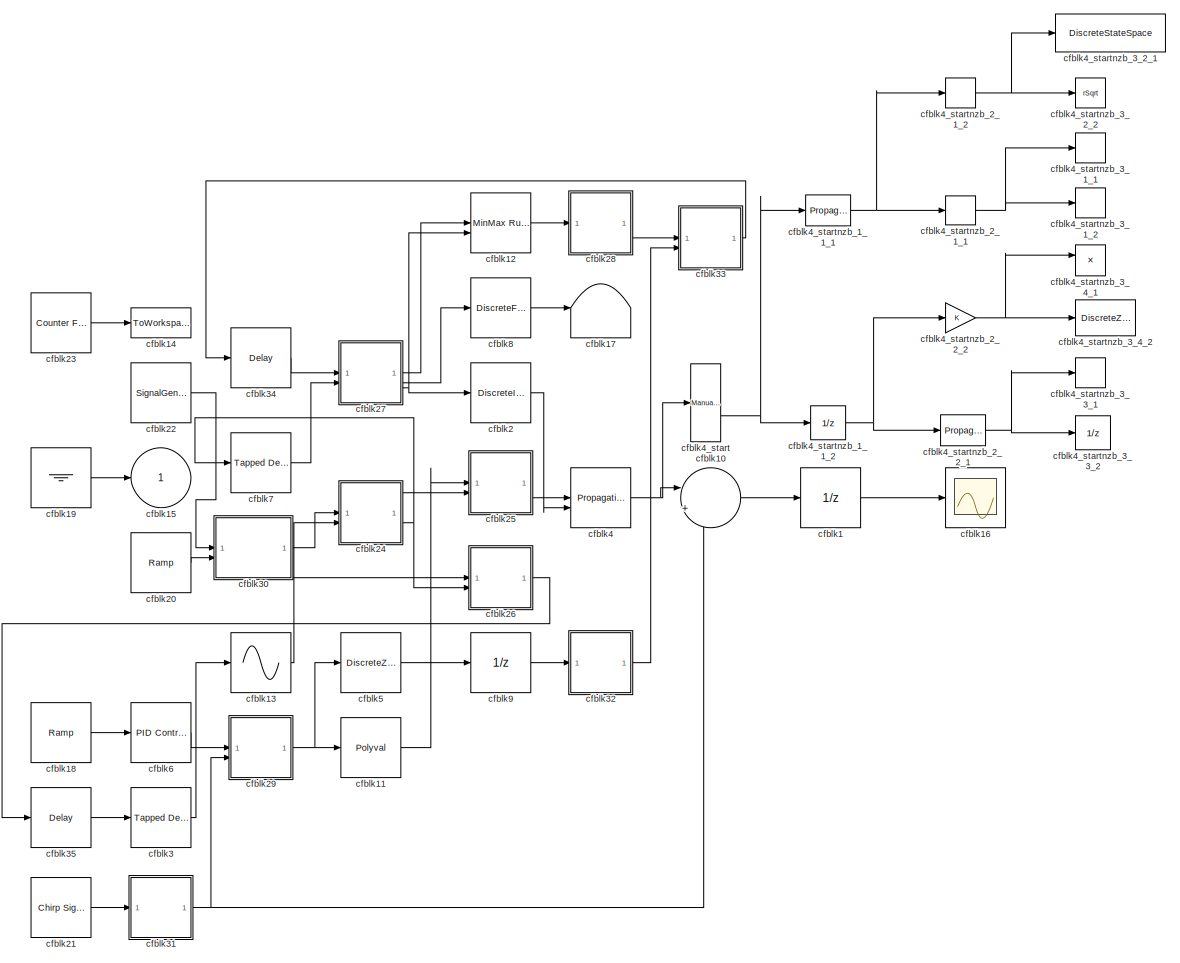
[diagram: root canvas - part 1/1, most of the canvas]
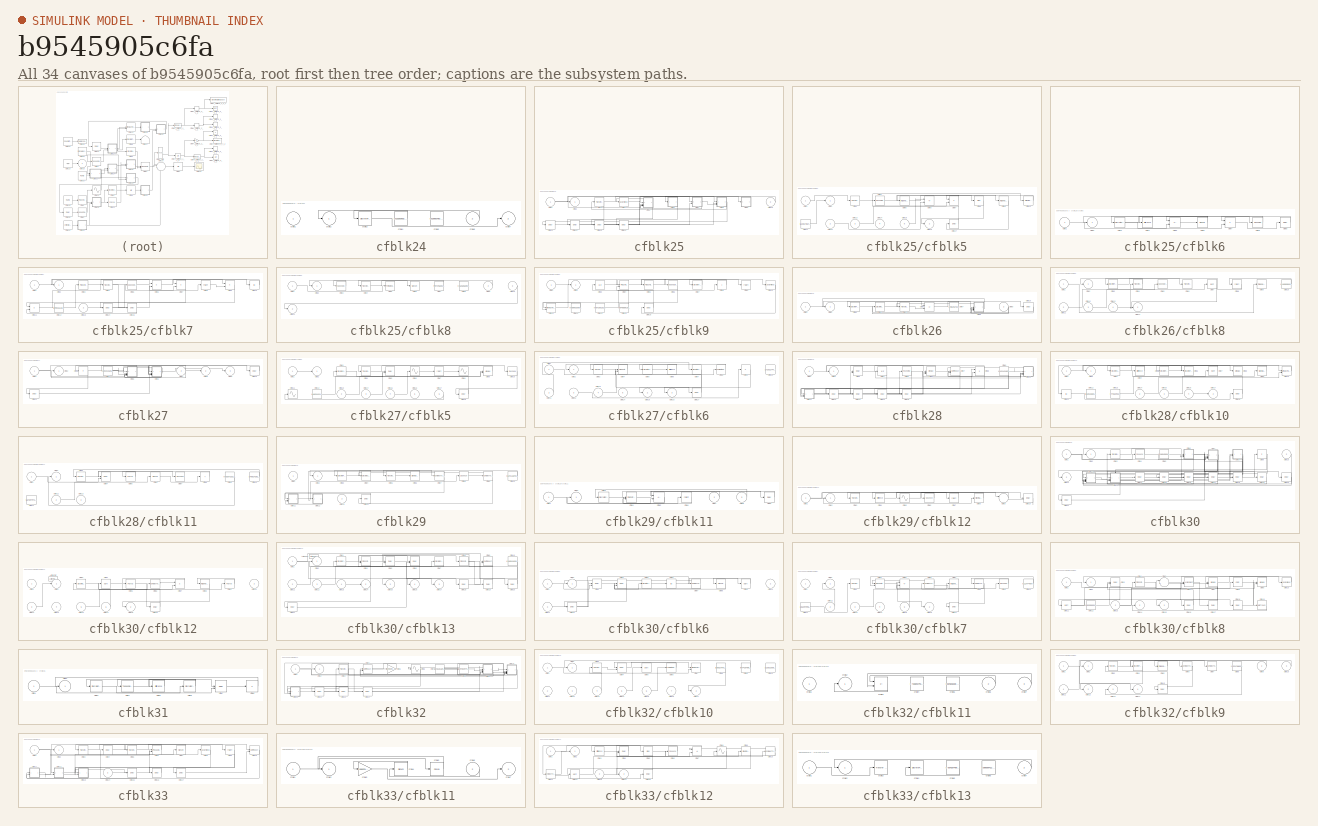
[diagram: thumbnail index - all 34 canvases of the model, root first then tree order]
MODEL slx_b9545905c6fa
KIND model
CONFIG AbsTol = auto
CONFIG EnableMultiTasking = off
CONFIG FixedStep = auto
CONFIG MaxStep = auto
CONFIG MinStep = auto
CONFIG RelTol = 1e-3
CONFIG SampleTimeConstraint = Unconstrained
CONFIG SolverName = VariableStepAuto
CONFIG StartTime = 0.0
CONFIG StopTime = 10.0
BLOCK [UnitDelay] cfblk1
  HasFrameUpgradeWarning = on
BLOCK [Sum] cfblk10
  Inputs = |++
BLOCK [Polyval] cfblk11
  Coefs = [ +2.081618890e-019, -1.441693666e-014, +4.719686976e-010, -8.536869453e-006, +1.621573104e-001, -8.087801117e+001 ]
BLOCK [Reference] cfblk12  REF=simulink/Math
Operations/MinMax
Running
Resettable
  SourceBlock = simulink/Math\nOperations/MinMax\nRunning\nResettable
  SourceType = MinMax Running Resettable
BLOCK [Sin] cfblk13
  SampleTime = 0
  TimeSource = Use external signal
BLOCK [ToWorkspace] cfblk14
  FixptAsFi = on
  MaxDataPoints = inf
  SampleTime = -1
  SaveFormat = Timeseries
  VariableName = jimbhge
BLOCK [Outport] cfblk15
BLOCK [Scope] cfblk16
  Floating = off
  NumInputPorts = 1
  ScopeSpecificationString = Simulink.scopes.TimeScopeBlockCfg
BLOCK [Terminator] cfblk17
BLOCK [Reference] cfblk18  REF=simulink/Sources/Ramp
  SourceBlock = simulink/Sources/Ramp
  SourceType = Ramp
BLOCK [Ground] cfblk19
BLOCK [DiscreteIntegrator] cfblk2
  ICPrevOutput = DiscIntNeverNeededParam
  ICPrevScaledInput = DiscIntNeverNeededParam
  InitialConditionSetting = Auto
BLOCK [Reference] cfblk20  REF=simulink/Sources/Ramp
  SourceBlock = simulink/Sources/Ramp
  SourceType = Ramp
BLOCK [Reference] cfblk21  REF=simulink/Sources/Chirp Signal
  SourceBlock = simulink/Sources/Chirp Signal
  SourceType = chirp
BLOCK [SignalGenerator] cfblk22
  Amplitude = [544340339.779621]
  WaveForm = square
BLOCK [Reference] cfblk23  REF=simulink/Sources/Counter
Free-Running
  SourceBlock = simulink/Sources/Counter\nFree-Running
  SourceType = Counter Free-Running
BLOCK [SubSystem] cfblk24
BLOCK [Inport] cfblk24/cfblk1
BLOCK [Outport] cfblk24/cfblk2
BLOCK [DiscreteFir] cfblk24/cfblk3
  InputPortMap = u0
  OutputPortMap = o0
  SampleTime = 1
BLOCK [Constant] cfblk24/cfblk4
  SampleTime = 1
  Value = [619260692.211267]
BLOCK [Constant] cfblk24/cfblk5
  SampleTime = 1
  Value = [619560780.626358]
BLOCK [Inport] cfblk24/cfblk6
  Port = 2
BLOCK [Outport] cfblk24/cfblk7
  Port = 2
BLOCK [SubSystem] cfblk25
BLOCK [Inport] cfblk25/cfblk1
BLOCK [Inport] cfblk25/cfblk10
  Port = 2
BLOCK [Delay] cfblk25/cfblk11
  InputPortMap = u0
  SampleTime = 1
BLOCK [Delay] cfblk25/cfblk12
  InputPortMap = u0
  SampleTime = 1
BLOCK [Delay] cfblk25/cfblk13
  InputPortMap = u0
  SampleTime = 1
BLOCK [Delay] cfblk25/cfblk14
  InputPortMap = u0
  SampleTime = 1
BLOCK [Outport] cfblk25/cfblk2
BLOCK [Reference] cfblk25/cfblk3  REF=simulink/Discrete/Transfer Fcn
Real Zero
  SourceBlock = simulink/Discrete/Transfer Fcn\nReal Zero
  SourceType = Transfer Fcn Real Zero
BLOCK [UnaryMinus] cfblk25/cfblk4
BLOCK [SubSystem] cfblk25/cfblk5
BLOCK [Inport] cfblk25/cfblk5/cfblk1
BLOCK [Reference] cfblk25/cfblk5/cfblk10  REF=simulink/Math
Operations/Slider
Gain
  SourceBlock = simulink/Math\nOperations/Slider\nGain
  SourceType = Slider Gain
BLOCK [Constant] cfblk25/cfblk5/cfblk11
  SampleTime = 1
  Value = [522817857.445277]
BLOCK [Inport] cfblk25/cfblk5/cfblk12
  Port = 2
BLOCK [Inport] cfblk25/cfblk5/cfblk13
  Port = 3
BLOCK [Inport] cfblk25/cfblk5/cfblk14
  Port = 4
BLOCK [Inport] cfblk25/cfblk5/cfblk15
  Port = 5
BLOCK [Outport] cfblk25/cfblk5/cfblk16
  Port = 2
BLOCK [Delay] cfblk25/cfblk5/cfblk17
  InputPortMap = u0
  SampleTime = 1
BLOCK [Outport] cfblk25/cfblk5/cfblk2
BLOCK [Reference] cfblk25/cfblk5/cfblk3  REF=simulink/Discrete/Transfer Fcn
Real Zero
  SourceBlock = simulink/Discrete/Transfer Fcn\nReal Zero
  SourceType = Transfer Fcn Real Zero
BLOCK [Rounding] cfblk25/cfblk5/cfblk4
BLOCK [Trigonometry] cfblk25/cfblk5/cfblk5
BLOCK [Sum] cfblk25/cfblk5/cfblk6
  IconShape = rectangular
  Inputs = +-
BLOCK [Product] cfblk25/cfblk5/cfblk7
BLOCK [Bias] cfblk25/cfblk5/cfblk8
  Bias = [674569887.854416]
  SaturateOnIntegerOverflow = off
BLOCK [Trigonometry] cfblk25/cfblk5/cfblk9
BLOCK [SubSystem] cfblk25/cfblk6
BLOCK [Inport] cfblk25/cfblk6/cfblk1
BLOCK [Outport] cfblk25/cfblk6/cfblk2
BLOCK [DiscreteFir] cfblk25/cfblk6/cfblk3
  InputPortMap = u0
  OutputPortMap = o0
  SampleTime = 1
BLOCK [Reference] cfblk25/cfblk6/cfblk4  REF=simulink/Discrete/Difference
  SourceBlock = simulink/Discrete/Difference
  SourceType = Difference
BLOCK [Sum] cfblk25/cfblk6/cfblk5
  IconShape = rectangular
  Inputs = +-
BLOCK [Signum] cfblk25/cfblk6/cfblk6
BLOCK [Product] cfblk25/cfblk6/cfblk7
BLOCK [Rounding] cfblk25/cfblk6/cfblk8
BLOCK [Delay] cfblk25/cfblk6/cfblk9
  InputPortMap = u0
  SampleTime = 1
BLOCK [SubSystem] cfblk25/cfblk7
BLOCK [Inport] cfblk25/cfblk7/cfblk1
BLOCK [Abs] cfblk25/cfblk7/cfblk10
  SaturateOnIntegerOverflow = off
BLOCK [Product] cfblk25/cfblk7/cfblk11
BLOCK [Constant] cfblk25/cfblk7/cfblk12
  SampleTime = 1
  Value = [399015118.877011]
BLOCK [Inport] cfblk25/cfblk7/cfblk13
  Port = 2
BLOCK [Delay] cfblk25/cfblk7/cfblk14
  InputPortMap = u0
  SampleTime = 1
BLOCK [Delay] cfblk25/cfblk7/cfblk15
  InputPortMap = u0
  SampleTime = 1
BLOCK [Outport] cfblk25/cfblk7/cfblk2
BLOCK [Reference] cfblk25/cfblk7/cfblk3  REF=slpidlib/PID Controller
  LibrarySourceBlock = simulink/Discrete/Discrete PID Controller
  SourceBlock = slpidlib/PID Controller
  SourceType = PID 1dof
BLOCK [Reference] cfblk25/cfblk7/cfblk4  REF=simulink/Discrete/Transfer Fcn
Lead or Lag
  SourceBlock = simulink/Discrete/Transfer Fcn\nLead or Lag
  SourceType = Lead or Lag Compensator
BLOCK [Reference] cfblk25/cfblk7/cfblk5  REF=simulink/Discrete/Tapped Delay
  SourceBlock = simulink/Discrete/Tapped Delay
  SourceType = Tapped Delay Line
BLOCK [Product] cfblk25/cfblk7/cfblk6
BLOCK [Product] cfblk25/cfblk7/cfblk7
  Inputs = **
BLOCK [Sqrt] cfblk25/cfblk7/cfblk8
  AlgorithmType = Newton-Raphson
  Operator = rSqrt
BLOCK [Product] cfblk25/cfblk7/cfblk9
  Inputs = **
BLOCK [SubSystem] cfblk25/cfblk8
BLOCK [Inport] cfblk25/cfblk8/cfblk1
BLOCK [Inport] cfblk25/cfblk8/cfblk10
  Port = 3
BLOCK [Outport] cfblk25/cfblk8/cfblk11
  Port = 2
BLOCK [Outport] cfblk25/cfblk8/cfblk2
BLOCK [Reference] cfblk25/cfblk8/cfblk3  REF=simulink/Discrete/Tapped Delay
  SourceBlock = simulink/Discrete/Tapped Delay
  SourceType = Tapped Delay Line
BLOCK [Reference] cfblk25/cfblk8/cfblk4  REF=simulink/Discrete/Transfer Fcn
Lead or Lag
  SourceBlock = simulink/Discrete/Transfer Fcn\nLead or Lag
  SourceType = Lead or Lag Compensator
BLOCK [PermuteDimensions] cfblk25/cfblk8/cfblk5
BLOCK [Signum] cfblk25/cfblk8/cfblk6
BLOCK [Constant] cfblk25/cfblk8/cfblk7
  SampleTime = 1
  Value = [497245692.108561]
BLOCK [Constant] cfblk25/cfblk8/cfblk8
  SampleTime = 1
  Value = [-352505690.659076]
BLOCK [Inport] cfblk25/cfblk8/cfblk9
  Port = 2
BLOCK [SubSystem] cfblk25/cfblk9
BLOCK [Inport] cfblk25/cfblk9/cfblk1
BLOCK [UnaryMinus] cfblk25/cfblk9/cfblk10
BLOCK [Reference] cfblk25/cfblk9/cfblk11  REF=simulink/Math
Operations/MinMax
Running
Resettable
  SourceBlock = simulink/Math\nOperations/MinMax\nRunning\nResettable
  SourceType = MinMax Running Resettable
BLOCK [Constant] cfblk25/cfblk9/cfblk12
  SampleTime = 1
  Value = [-589662599.305054]
BLOCK [Constant] cfblk25/cfblk9/cfblk13
  SampleTime = 1
  Value = [-897290192.026509]
BLOCK [Constant] cfblk25/cfblk9/cfblk14
  SampleTime = 1
  Value = [-404888619.665667]
BLOCK [Delay] cfblk25/cfblk9/cfblk15
  InputPortMap = u0
  SampleTime = 1
BLOCK [Outport] cfblk25/cfblk9/cfblk2
BLOCK [UnitDelay] cfblk25/cfblk9/cfblk3
  HasFrameUpgradeWarning = on
BLOCK [Reference] cfblk25/cfblk9/cfblk4  REF=slpidlib/PID Controller (2DOF)
  LibrarySourceBlock = simulink/Discrete/Discrete PID Controller (2DOF)
  SourceBlock = slpidlib/PID Controller (2DOF)
  SourceType = PID 2dof
BLOCK [Reference] cfblk25/cfblk9/cfblk5  REF=slpidlib/PID Controller
  LibrarySourceBlock = simulink/Discrete/Discrete PID Controller
  SourceBlock = slpidlib/PID Controller
  SourceType = PID 1dof
BLOCK [Reference] cfblk25/cfblk9/cfblk6  REF=simulink/Discrete/Tapped Delay
  SourceBlock = simulink/Discrete/Tapped Delay
  SourceType = Tapped Delay Line
BLOCK [DiscreteTransferFcn] cfblk25/cfblk9/cfblk7
  InputPortMap = u0
  SampleTime = 1
BLOCK [Sum] cfblk25/cfblk9/cfblk8
  IconShape = rectangular
  Inputs = +
BLOCK [Sqrt] cfblk25/cfblk9/cfblk9
  AlgorithmType = Newton-Raphson
  Operator = rSqrt
BLOCK [SubSystem] cfblk26
BLOCK [Inport] cfblk26/cfblk1
BLOCK [Delay] cfblk26/cfblk10
  InputPortMap = u0
  SampleTime = 1
BLOCK [Outport] cfblk26/cfblk2
BLOCK [DiscreteFilter] cfblk26/cfblk3
  InputPortMap = u0
  SampleTime = 1
BLOCK [DiscreteIntegrator] cfblk26/cfblk4
  ICPrevOutput = DiscIntNeverNeededParam
  ICPrevScaledInput = DiscIntNeverNeededParam
  InitialConditionSetting = Auto
BLOCK [Reference] cfblk26/cfblk5  REF=simulink/Discrete/Transfer Fcn
Real Zero
  SourceBlock = simulink/Discrete/Transfer Fcn\nReal Zero
  SourceType = Transfer Fcn Real Zero
BLOCK [Sum] cfblk26/cfblk6
  IconShape = rectangular
  Inputs = +-
BLOCK [Constant] cfblk26/cfblk7
  SampleTime = 1
  Value = [-48546722.892624]
BLOCK [SubSystem] cfblk26/cfblk8
BLOCK [Inport] cfblk26/cfblk8/cfblk1
BLOCK [Constant] cfblk26/cfblk8/cfblk10
  SampleTime = 1
  Value = [-146083815.756705]
BLOCK [Inport] cfblk26/cfblk8/cfblk11
  Port = 2
BLOCK [Inport] cfblk26/cfblk8/cfblk12
  Port = 3
BLOCK [Inport] cfblk26/cfblk8/cfblk13
  Port = 4
BLOCK [Outport] cfblk26/cfblk8/cfblk14
  Port = 2
BLOCK [Outport] cfblk26/cfblk8/cfblk2
BLOCK [DiscreteFir] cfblk26/cfblk8/cfblk3
  InputPortMap = u0
  OutputPortMap = o0
  SampleTime = 1
BLOCK [Reference] cfblk26/cfblk8/cfblk4  REF=simulink/Discrete/Transfer Fcn
First Order
  SourceBlock = simulink/Discrete/Transfer Fcn\nFirst Order
  SourceType = First Order Transfer Fcn
BLOCK [Reference] cfblk26/cfblk8/cfblk5  REF=simulink/Discrete/Tapped Delay
  SourceBlock = simulink/Discrete/Tapped Delay
  SourceType = Tapped Delay Line
BLOCK [Reference] cfblk26/cfblk8/cfblk6  REF=simulink/Discrete/Transfer Fcn
First Order
  SourceBlock = simulink/Discrete/Transfer Fcn\nFirst Order
  SourceType = First Order Transfer Fcn
BLOCK [Sqrt] cfblk26/cfblk8/cfblk7
BLOCK [Sqrt] cfblk26/cfblk8/cfblk8
  AlgorithmType = Newton-Raphson
  Operator = rSqrt
BLOCK [Trigonometry] cfblk26/cfblk8/cfblk9
BLOCK [Inport] cfblk26/cfblk9
  Port = 2
BLOCK [SubSystem] cfblk27
BLOCK [Inport] cfblk27/cfblk1
BLOCK [Delay] cfblk27/cfblk10
  InputPortMap = u0
  SampleTime = 1
BLOCK [Delay] cfblk27/cfblk11
  InputPortMap = u0
  SampleTime = 1
BLOCK [Outport] cfblk27/cfblk2
BLOCK [Product] cfblk27/cfblk3
  Inputs = *
BLOCK [Constant] cfblk27/cfblk4
  SampleTime = 1
  Value = [-592211525.681612]
BLOCK [SubSystem] cfblk27/cfblk5
BLOCK [Inport] cfblk27/cfblk5/cfblk1
BLOCK [Reshape] cfblk27/cfblk5/cfblk10
BLOCK [Sin] cfblk27/cfblk5/cfblk11
  SampleTime = 0
  TimeSource = Use external signal
BLOCK [Constant] cfblk27/cfblk5/cfblk12
  SampleTime = 1
  Value = [-84034424.165406]
BLOCK [Inport] cfblk27/cfblk5/cfblk13
  Port = 2
BLOCK [Inport] cfblk27/cfblk5/cfblk14
  Port = 3
BLOCK [Inport] cfblk27/cfblk5/cfblk15
  Port = 4
BLOCK [Inport] cfblk27/cfblk5/cfblk16
  Port = 5
BLOCK [Inport] cfblk27/cfblk5/cfblk17
  Port = 6
BLOCK [Delay] cfblk27/cfblk5/cfblk18
  InputPortMap = u0
  SampleTime = 1
BLOCK [Outport] cfblk27/cfblk5/cfblk2
BLOCK [DiscreteStateSpace] cfblk27/cfblk5/cfblk3
BLOCK [Reference] cfblk27/cfblk5/cfblk4  REF=simulink/Discrete/Transfer Fcn
Real Zero
  SourceBlock = simulink/Discrete/Transfer Fcn\nReal Zero
  SourceType = Transfer Fcn Real Zero
BLOCK [Delay] cfblk27/cfblk5/cfblk5
  InputPortMap = u0,e6
  SampleTime = 1
  ShowEnablePort = on
BLOCK [Sin] cfblk27/cfblk5/cfblk6
  SampleTime = 0
  TimeSource = Use external signal
BLOCK [Sqrt] cfblk27/cfblk5/cfblk7
  AlgorithmType = Newton-Raphson
  Operator = rSqrt
BLOCK [Sin] cfblk27/cfblk5/cfblk8
  SampleTime = 0
  TimeSource = Use external signal
BLOCK [MinMax] cfblk27/cfblk5/cfblk9
  Inputs = 2
BLOCK [SubSystem] cfblk27/cfblk6
BLOCK [Inport] cfblk27/cfblk6/cfblk1
BLOCK [Constant] cfblk27/cfblk6/cfblk10
  SampleTime = 1
  Value = [171631747.225343]
BLOCK [Inport] cfblk27/cfblk6/cfblk11
  Port = 2
BLOCK [Inport] cfblk27/cfblk6/cfblk12
  Port = 3
BLOCK [Inport] cfblk27/cfblk6/cfblk13
  Port = 4
BLOCK [Inport] cfblk27/cfblk6/cfblk14
  Port = 5
BLOCK [Outport] cfblk27/cfblk6/cfblk15
  Port = 2
BLOCK [Outport] cfblk27/cfblk6/cfblk16
  Port = 3
BLOCK [Delay] cfblk27/cfblk6/cfblk17
  InputPortMap = u0
  SampleTime = 1
BLOCK [Outport] cfblk27/cfblk6/cfblk2
BLOCK [Reference] cfblk27/cfblk6/cfblk3  REF=simulink/Discrete/Transfer Fcn
First Order
  SourceBlock = simulink/Discrete/Transfer Fcn\nFirst Order
  SourceType = First Order Transfer Fcn
BLOCK [Reference] cfblk27/cfblk6/cfblk4  REF=slpidlib/PID Controller (2DOF)
  LibrarySourceBlock = simulink/Discrete/Discrete PID Controller (2DOF)
  SourceBlock = slpidlib/PID Controller (2DOF)
  SourceType = PID 2dof
BLOCK [DiscreteZeroPole] cfblk27/cfblk6/cfblk5
  Gain = 1
  Poles = [0 0.5]
BLOCK [Reference] cfblk27/cfblk6/cfblk6  REF=simulink/Discrete/Difference
  SourceBlock = simulink/Discrete/Difference
  SourceType = Difference
BLOCK [DiscreteFir] cfblk27/cfblk6/cfblk7
  InputPortMap = u0
  OutputPortMap = o0
  SampleTime = 1
BLOCK [PermuteDimensions] cfblk27/cfblk6/cfblk8
BLOCK [Product] cfblk27/cfblk6/cfblk9
  Inputs = *
BLOCK [Inport] cfblk27/cfblk7
  Port = 2
BLOCK [Outport] cfblk27/cfblk8
  Port = 2
BLOCK [Outport] cfblk27/cfblk9
  Port = 3
BLOCK [SubSystem] cfblk28
BLOCK [Inport] cfblk28/cfblk1
BLOCK [SubSystem] cfblk28/cfblk10
BLOCK [Inport] cfblk28/cfblk10/cfblk1
BLOCK [Reference] cfblk28/cfblk10/cfblk10  REF=simulink/Math
Operations/MinMax
Running
Resettable
  SourceBlock = simulink/Math\nOperations/MinMax\nRunning\nResettable
  SourceType = MinMax Running Resettable
BLOCK [Abs] cfblk28/cfblk10/cfblk11
  SaturateOnIntegerOverflow = off
BLOCK [Constant] cfblk28/cfblk10/cfblk12
  SampleTime = 1
  Value = [262615581.449142]
BLOCK [Constant] cfblk28/cfblk10/cfblk13
  SampleTime = 1
  Value = [-47653932.616720]
BLOCK [Inport] cfblk28/cfblk10/cfblk14
  Port = 2
BLOCK [Inport] cfblk28/cfblk10/cfblk15
  Port = 3
BLOCK [Inport] cfblk28/cfblk10/cfblk16
  Port = 4
BLOCK [Outport] cfblk28/cfblk10/cfblk17
  Port = 2
BLOCK [Delay] cfblk28/cfblk10/cfblk18
  InputPortMap = u0
  SampleTime = 1
BLOCK [Outport] cfblk28/cfblk10/cfblk2
BLOCK [DiscreteStateSpace] cfblk28/cfblk10/cfblk3
BLOCK [Reference] cfblk28/cfblk10/cfblk4  REF=simulink/Discrete/Difference
  SourceBlock = simulink/Discrete/Difference
  SourceType = Difference
BLOCK [DiscreteFir] cfblk28/cfblk10/cfblk5
  InputPortMap = u0
  OutputPortMap = o0
  SampleTime = 1
BLOCK [DiscreteFir] cfblk28/cfblk10/cfblk6
  InputPortMap = u0
  OutputPortMap = o0
  SampleTime = 1
BLOCK [Sqrt] cfblk28/cfblk10/cfblk7
BLOCK [MinMax] cfblk28/cfblk10/cfblk8
  Function = max
BLOCK [Reference] cfblk28/cfblk10/cfblk9  REF=simulink/Math
Operations/Slider
Gain
  SourceBlock = simulink/Math\nOperations/Slider\nGain
  SourceType = Slider Gain
BLOCK [SubSystem] cfblk28/cfblk11
BLOCK [Inport] cfblk28/cfblk11/cfblk1
BLOCK [Constant] cfblk28/cfblk11/cfblk10
  SampleTime = 1
  Value = [146814281.342832]
BLOCK [Constant] cfblk28/cfblk11/cfblk11
  SampleTime = 1
  Value = [557597971.327847]
BLOCK [Inport] cfblk28/cfblk11/cfblk12
  Port = 2
BLOCK [Inport] cfblk28/cfblk11/cfblk13
  Port = 3
BLOCK [Outport] cfblk28/cfblk11/cfblk2
BLOCK [Reference] cfblk28/cfblk11/cfblk3  REF=simulink/Discrete/Transfer Fcn
Real Zero
  SourceBlock = simulink/Discrete/Transfer Fcn\nReal Zero
  SourceType = Transfer Fcn Real Zero
BLOCK [Delay] cfblk28/cfblk11/cfblk4
  DelayLengthSource = Input port
  InputPortMap = u0,p1
  SampleTime = 1
BLOCK [Polyval] cfblk28/cfblk11/cfblk5
  Coefs = [ +2.081618890e-019, -1.441693666e-014, +4.719686976e-010, -8.536869453e-006, +1.621573104e-001, -8.087801117e+001 ]
BLOCK [Signum] cfblk28/cfblk11/cfblk6
BLOCK [Reshape] cfblk28/cfblk11/cfblk7
BLOCK [Sum] cfblk28/cfblk11/cfblk8
  IconShape = rectangular
  Inputs = +
BLOCK [Constant] cfblk28/cfblk11/cfblk9
  SampleTime = 1
  Value = [-502071521.517534]
BLOCK [Delay] cfblk28/cfblk12
  InputPortMap = u0
  SampleTime = 1
BLOCK [Delay] cfblk28/cfblk13
  InputPortMap = u0
  SampleTime = 1
BLOCK [Delay] cfblk28/cfblk14
  InputPortMap = u0
  SampleTime = 1
BLOCK [Delay] cfblk28/cfblk15
  InputPortMap = u0
  SampleTime = 1
BLOCK [Outport] cfblk28/cfblk2
BLOCK [Delay] cfblk28/cfblk3
  DelayLengthSource = Input port
  InputPortMap = u0,p1
  SampleTime = 1
BLOCK [UnitDelay] cfblk28/cfblk4
  HasFrameUpgradeWarning = on
BLOCK [Rounding] cfblk28/cfblk5
BLOCK [MinMax] cfblk28/cfblk6
  Inputs = 3
BLOCK [DotProduct] cfblk28/cfblk7
  OutDataTypeStr = Inherit: Inherit via internal rule
BLOCK [Product] cfblk28/cfblk8
  Inputs = **
BLOCK [Constant] cfblk28/cfblk9
  SampleTime = 1
  Value = [-543142463.220039]
BLOCK [SubSystem] cfblk29
BLOCK [Inport] cfblk29/cfblk1
BLOCK [Constant] cfblk29/cfblk10
  SampleTime = 1
  Value = [-634116043.235819]
BLOCK [SubSystem] cfblk29/cfblk11
BLOCK [Inport] cfblk29/cfblk11/cfblk1
BLOCK [Outport] cfblk29/cfblk11/cfblk2
BLOCK [DiscreteFilter] cfblk29/cfblk11/cfblk3
  InputPortMap = u0
  SampleTime = 1
BLOCK [Reference] cfblk29/cfblk11/cfblk4  REF=slpidlib/PID Controller (2DOF)
  LibrarySourceBlock = simulink/Discrete/Discrete PID Controller (2DOF)
  SourceBlock = slpidlib/PID Controller (2DOF)
  SourceType = PID 2dof
BLOCK [Sum] cfblk29/cfblk11/cfblk5
  IconShape = rectangular
  Inputs = +-
BLOCK [Sqrt] cfblk29/cfblk11/cfblk6
  AlgorithmType = Newton-Raphson
  Operator = rSqrt
BLOCK [Inport] cfblk29/cfblk11/cfblk7
  Port = 2
BLOCK [Inport] cfblk29/cfblk11/cfblk8
  Port = 3
BLOCK [Delay] cfblk29/cfblk11/cfblk9
  InputPortMap = u0
  SampleTime = 1
BLOCK [SubSystem] cfblk29/cfblk12
BLOCK [Inport] cfblk29/cfblk12/cfblk1
BLOCK [Delay] cfblk29/cfblk12/cfblk10
  InputPortMap = u0
  SampleTime = 1
BLOCK [Outport] cfblk29/cfblk12/cfblk2
BLOCK [Reference] cfblk29/cfblk12/cfblk3  REF=simulink/Discrete/Transfer Fcn
First Order
  SourceBlock = simulink/Discrete/Transfer Fcn\nFirst Order
  SourceType = First Order Transfer Fcn
BLOCK [Reference] cfblk29/cfblk12/cfblk4  REF=simulink/Discrete/Difference
  SourceBlock = simulink/Discrete/Difference
  SourceType = Difference
BLOCK [Sin] cfblk29/cfblk12/cfblk5
  SampleTime = 0
  TimeSource = Use external signal
BLOCK [Squeeze] cfblk29/cfblk12/cfblk6
BLOCK [Sqrt] cfblk29/cfblk12/cfblk7
  AlgorithmType = Newton-Raphson
  Operator = rSqrt
BLOCK [Reference] cfblk29/cfblk12/cfblk8  REF=simulink/Math
Operations/Slider
Gain
  SourceBlock = simulink/Math\nOperations/Slider\nGain
  SourceType = Slider Gain
BLOCK [Sum] cfblk29/cfblk12/cfblk9
  Inputs = |++
BLOCK [Inport] cfblk29/cfblk13
  Port = 2
BLOCK [Delay] cfblk29/cfblk14
  InputPortMap = u0
  SampleTime = 1
BLOCK [Outport] cfblk29/cfblk2
BLOCK [DiscreteFir] cfblk29/cfblk3
  InputPortMap = u0
  OutputPortMap = o0
  SampleTime = 1
BLOCK [DiscreteStateSpace] cfblk29/cfblk4
BLOCK [Reference] cfblk29/cfblk5  REF=simulink/Discrete/Transfer Fcn
Lead or Lag
  SourceBlock = simulink/Discrete/Transfer Fcn\nLead or Lag
  SourceType = Lead or Lag Compensator
BLOCK [Reference] cfblk29/cfblk6  REF=simulink/Math
Operations/Slider
Gain
  SourceBlock = simulink/Math\nOperations/Slider\nGain
  SourceType = Slider Gain
BLOCK [ComplexToRealImag] cfblk29/cfblk7
BLOCK [Squeeze] cfblk29/cfblk8
BLOCK [ComplexToMagnitudeAngle] cfblk29/cfblk9
BLOCK [Reference] cfblk3  REF=simulink/Discrete/Tapped Delay
  SourceBlock = simulink/Discrete/Tapped Delay
  SourceType = Tapped Delay Line
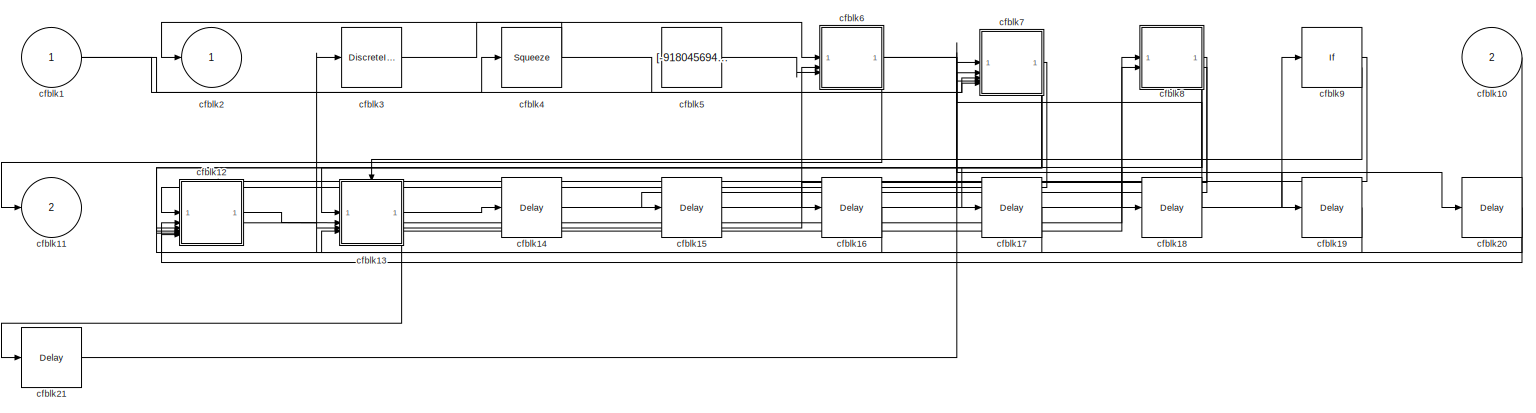
[diagram: cfblk30 - part 1/1, most of the canvas]
BLOCK [SubSystem] cfblk30
BLOCK [Inport] cfblk30/cfblk1
BLOCK [Inport] cfblk30/cfblk10
  Port = 2
BLOCK [Outport] cfblk30/cfblk11
  Port = 2
BLOCK [SubSystem] cfblk30/cfblk12
  TreatAsAtomicUnit = on
BLOCK [ActionPort] cfblk30/cfblk12/Action Port
  ActionPortLabel = if(u1 >= 0)
BLOCK [Inport] cfblk30/cfblk12/cfblk1
BLOCK [Inport] cfblk30/cfblk12/cfblk10
  Port = 2
BLOCK [Inport] cfblk30/cfblk12/cfblk11
  Port = 3
BLOCK [Inport] cfblk30/cfblk12/cfblk12
  Port = 4
BLOCK [Inport] cfblk30/cfblk12/cfblk13
  Port = 5
BLOCK [Inport] cfblk30/cfblk12/cfblk14
  Port = 6
BLOCK [Outport] cfblk30/cfblk12/cfblk15
  Port = 2
BLOCK [Delay] cfblk30/cfblk12/cfblk16
  InputPortMap = u0
BLOCK [Outport] cfblk30/cfblk12/cfblk2
BLOCK [DiscreteIntegrator] cfblk30/cfblk12/cfblk3
  ICPrevOutput = DiscIntNeverNeededParam
  ICPrevScaledInput = DiscIntNeverNeededParam
  InitialConditionSetting = Auto
  SampleTime = -1
BLOCK [Sqrt] cfblk30/cfblk12/cfblk4
BLOCK [Polyval] cfblk30/cfblk12/cfblk5
  Coefs = [ +2.081618890e-019, -1.441693666e-014, +4.719686976e-010, -8.536869453e-006, +1.621573104e-001, -8.087801117e+001 ]
BLOCK [ComplexToRealImag] cfblk30/cfblk12/cfblk6
BLOCK [Product] cfblk30/cfblk12/cfblk7
  Inputs = **
BLOCK [Trigonometry] cfblk30/cfblk12/cfblk8
BLOCK [Polyval] cfblk30/cfblk12/cfblk9
  Coefs = [ +2.081618890e-019, -1.441693666e-014, +4.719686976e-010, -8.536869453e-006, +1.621573104e-001, -8.087801117e+001 ]
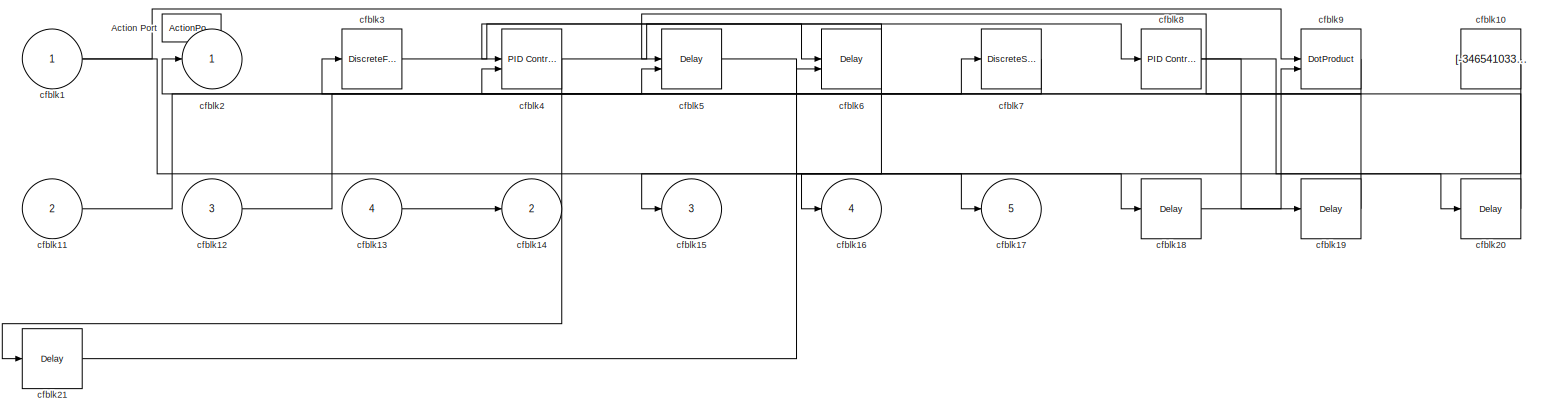
[diagram: cfblk30/cfblk13 - part 1/1, most of the canvas]
BLOCK [SubSystem] cfblk30/cfblk13
  TreatAsAtomicUnit = on
BLOCK [ActionPort] cfblk30/cfblk13/Action Port
  ActionPortLabel = else
BLOCK [Inport] cfblk30/cfblk13/cfblk1
BLOCK [Constant] cfblk30/cfblk13/cfblk10
  SampleTime = 1
  Value = [-346541033.860224]
BLOCK [Inport] cfblk30/cfblk13/cfblk11
  Port = 2
BLOCK [Inport] cfblk30/cfblk13/cfblk12
  Port = 3
BLOCK [Inport] cfblk30/cfblk13/cfblk13
  Port = 4
BLOCK [Outport] cfblk30/cfblk13/cfblk14
  Port = 2
BLOCK [Outport] cfblk30/cfblk13/cfblk15
  Port = 3
BLOCK [Outport] cfblk30/cfblk13/cfblk16
  Port = 4
BLOCK [Outport] cfblk30/cfblk13/cfblk17
  Port = 5
BLOCK [Delay] cfblk30/cfblk13/cfblk18
  InputPortMap = u0
BLOCK [Delay] cfblk30/cfblk13/cfblk19
  InputPortMap = u0
BLOCK [Outport] cfblk30/cfblk13/cfblk2
BLOCK [Delay] cfblk30/cfblk13/cfblk20
  InputPortMap = u0
BLOCK [Delay] cfblk30/cfblk13/cfblk21
  InputPortMap = u0
BLOCK [DiscreteFilter] cfblk30/cfblk13/cfblk3
  InputPortMap = u0
BLOCK [Reference] cfblk30/cfblk13/cfblk4  REF=slpidlib/PID Controller (2DOF)
  LibrarySourceBlock = simulink/Discrete/Discrete PID Controller (2DOF)
  SourceBlock = slpidlib/PID Controller (2DOF)
  SourceType = PID 2dof
BLOCK [Delay] cfblk30/cfblk13/cfblk5
  DelayLengthSource = Input port
  InputPortMap = u0,p1
BLOCK [Delay] cfblk30/cfblk13/cfblk6
  DelayLengthSource = Input port
  InputPortMap = u0,p1
BLOCK [DiscreteStateSpace] cfblk30/cfblk13/cfblk7
  SampleTime = -1
BLOCK [Reference] cfblk30/cfblk13/cfblk8  REF=slpidlib/PID Controller
  LibrarySourceBlock = simulink/Discrete/Discrete PID Controller
  SourceBlock = slpidlib/PID Controller
  SourceType = PID 1dof
BLOCK [DotProduct] cfblk30/cfblk13/cfblk9
  OutDataTypeStr = Inherit: Inherit via internal rule
BLOCK [Delay] cfblk30/cfblk14
  InputPortMap = u0
  SampleTime = 1
BLOCK [Delay] cfblk30/cfblk15
  InputPortMap = u0
  SampleTime = 1
BLOCK [Delay] cfblk30/cfblk16
  InputPortMap = u0
  SampleTime = 1
BLOCK [Delay] cfblk30/cfblk17
  InputPortMap = u0
  SampleTime = 1
BLOCK [Delay] cfblk30/cfblk18
  InputPortMap = u0
  SampleTime = 1
BLOCK [Delay] cfblk30/cfblk19
  InputPortMap = u0
  SampleTime = 1
BLOCK [Outport] cfblk30/cfblk2
BLOCK [Delay] cfblk30/cfblk20
  InputPortMap = u0
  SampleTime = 1
BLOCK [Delay] cfblk30/cfblk21
  InputPortMap = u0
  SampleTime = 1
BLOCK [DiscreteIntegrator] cfblk30/cfblk3
  ICPrevOutput = DiscIntNeverNeededParam
  ICPrevScaledInput = DiscIntNeverNeededParam
  InitialConditionSetting = Auto
BLOCK [Squeeze] cfblk30/cfblk4
BLOCK [Constant] cfblk30/cfblk5
  SampleTime = 1
  Value = [-918045694.810452]
BLOCK [SubSystem] cfblk30/cfblk6
BLOCK [Inport] cfblk30/cfblk6/cfblk1
BLOCK [Inport] cfblk30/cfblk6/cfblk10
  Port = 2
BLOCK [Inport] cfblk30/cfblk6/cfblk11
  Port = 3
BLOCK [Delay] cfblk30/cfblk6/cfblk12
  InputPortMap = u0
  SampleTime = 1
BLOCK [Outport] cfblk30/cfblk6/cfblk2
BLOCK [Delay] cfblk30/cfblk6/cfblk3
  DelayLengthSource = Input port
  InputPortMap = u0,p1
  SampleTime = 1
BLOCK [Delay] cfblk30/cfblk6/cfblk4
  InputPortMap = u0,e6
  SampleTime = 1
  ShowEnablePort = on
BLOCK [DiscreteTransferFcn] cfblk30/cfblk6/cfblk5
  InputPortMap = u0
  SampleTime = 1
BLOCK [Abs] cfblk30/cfblk6/cfblk6
  SaturateOnIntegerOverflow = off
BLOCK [ComplexToMagnitudeAngle] cfblk30/cfblk6/cfblk7
BLOCK [Signum] cfblk30/cfblk6/cfblk8
BLOCK [Sqrt] cfblk30/cfblk6/cfblk9
BLOCK [SubSystem] cfblk30/cfblk7
BLOCK [Inport] cfblk30/cfblk7/cfblk1
BLOCK [Constant] cfblk30/cfblk7/cfblk10
  SampleTime = 1
  Value = [-112474567.592749]
BLOCK [Constant] cfblk30/cfblk7/cfblk11
  SampleTime = 1
  Value = [265394996.218254]
BLOCK [Inport] cfblk30/cfblk7/cfblk12
  Port = 2
BLOCK [Inport] cfblk30/cfblk7/cfblk13
  Port = 3
BLOCK [Inport] cfblk30/cfblk7/cfblk14
  Port = 4
BLOCK [Inport] cfblk30/cfblk7/cfblk15
  Port = 5
BLOCK [Outport] cfblk30/cfblk7/cfblk16
  Port = 2
BLOCK [Delay] cfblk30/cfblk7/cfblk17
  InputPortMap = u0
  SampleTime = 1
BLOCK [Outport] cfblk30/cfblk7/cfblk2
BLOCK [Reference] cfblk30/cfblk7/cfblk3  REF=simulink/Discrete/Transfer Fcn
First Order
  SourceBlock = simulink/Discrete/Transfer Fcn\nFirst Order
  SourceType = First Order Transfer Fcn
BLOCK [PropagationDelay] cfblk30/cfblk7/cfblk4
  SampleTime = 1
BLOCK [Sum] cfblk30/cfblk7/cfblk5
  IconShape = rectangular
  Inputs = +-
BLOCK [ComplexToRealImag] cfblk30/cfblk7/cfblk6
BLOCK [Trigonometry] cfblk30/cfblk7/cfblk7
BLOCK [ComplexToRealImag] cfblk30/cfblk7/cfblk8
BLOCK [Reshape] cfblk30/cfblk7/cfblk9
BLOCK [SubSystem] cfblk30/cfblk8
BLOCK [Inport] cfblk30/cfblk8/cfblk1
BLOCK [UnaryMinus] cfblk30/cfblk8/cfblk10
BLOCK [Sqrt] cfblk30/cfblk8/cfblk11
BLOCK [Constant] cfblk30/cfblk8/cfblk12
  SampleTime = 1
  Value = [-903356691.945363]
BLOCK [Inport] cfblk30/cfblk8/cfblk13
  Port = 2
BLOCK [Outport] cfblk30/cfblk8/cfblk14
  Port = 2
BLOCK [Outport] cfblk30/cfblk8/cfblk15
  Port = 3
BLOCK [Delay] cfblk30/cfblk8/cfblk16
  InputPortMap = u0
  SampleTime = 1
BLOCK [Delay] cfblk30/cfblk8/cfblk17
  InputPortMap = u0
  SampleTime = 1
BLOCK [Delay] cfblk30/cfblk8/cfblk18
  InputPortMap = u0
  SampleTime = 1
BLOCK [DataTypeConversion] cfblk30/cfblk8/cfblk19
  RndMeth = Floor
  SaturateOnIntegerOverflow = off
BLOCK [Outport] cfblk30/cfblk8/cfblk2
BLOCK [Delay] cfblk30/cfblk8/cfblk3
  DelayLengthSource = Input port
  InputPortMap = u0,p1
  SampleTime = 1
BLOCK [Reference] cfblk30/cfblk8/cfblk4  REF=slpidlib/PID Controller
  LibrarySourceBlock = simulink/Discrete/Discrete PID Controller
  SourceBlock = slpidlib/PID Controller
  SourceType = PID 1dof
BLOCK [Sum] cfblk30/cfblk8/cfblk5
  Inputs = |++
BLOCK [Assignment] cfblk30/cfblk8/cfblk6
  DiagnosticForDimensions = Warning
  IndexOptions = Index vector (dialog)
  Indices = 1
  OutputSizes = 1
BLOCK [MinMax] cfblk30/cfblk8/cfblk7
  Inputs = 2
BLOCK [Math] cfblk30/cfblk8/cfblk8
  Operator = conj
BLOCK [MinMax] cfblk30/cfblk8/cfblk9
  Function = max
  Inputs = 2
BLOCK [If] cfblk30/cfblk9
  IfExpression = u1 >= 0
  SampleTime = 1
BLOCK [SubSystem] cfblk31
BLOCK [Inport] cfblk31/cfblk1
BLOCK [Outport] cfblk31/cfblk2
BLOCK [DiscreteFilter] cfblk31/cfblk3
  InputPortMap = u0
  SampleTime = 1
BLOCK [Reference] cfblk31/cfblk4  REF=simulink/Discrete/Tapped Delay
  SourceBlock = simulink/Discrete/Tapped Delay
  SourceType = Tapped Delay Line
BLOCK [Reference] cfblk31/cfblk5  REF=simulink/Discrete/Difference
  SourceBlock = simulink/Discrete/Difference
  SourceType = Difference
BLOCK [DiscreteFir] cfblk31/cfblk6
  InputPortMap = u0
  OutputPortMap = o0
  SampleTime = 1
BLOCK [Math] cfblk31/cfblk7
  Operator = pow
BLOCK [Product] cfblk31/cfblk8
  Inputs = *
BLOCK [SubSystem] cfblk32
BLOCK [Inport] cfblk32/cfblk1
BLOCK [SubSystem] cfblk32/cfblk10
BLOCK [Inport] cfblk32/cfblk10/cfblk1
BLOCK [Constant] cfblk32/cfblk10/cfblk10
  SampleTime = 1
  Value = [213021559.510984]
BLOCK [Inport] cfblk32/cfblk10/cfblk11
  Port = 2
BLOCK [Inport] cfblk32/cfblk10/cfblk12
  Port = 3
BLOCK [Inport] cfblk32/cfblk10/cfblk13
  Port = 4
BLOCK [Inport] cfblk32/cfblk10/cfblk14
  Port = 5
BLOCK [Inport] cfblk32/cfblk10/cfblk15
  Port = 6
BLOCK [Inport] cfblk32/cfblk10/cfblk16
  Port = 7
BLOCK [Outport] cfblk32/cfblk10/cfblk17
  Port = 2
BLOCK [Outport] cfblk32/cfblk10/cfblk2
BLOCK [Reference] cfblk32/cfblk10/cfblk3  REF=simulink/Discrete/Transfer Fcn
Lead or Lag
  SourceBlock = simulink/Discrete/Transfer Fcn\nLead or Lag
  SourceType = Lead or Lag Compensator
BLOCK [Delay] cfblk32/cfblk10/cfblk4
  InputPortMap = u0,e6
  SampleTime = 1
  ShowEnablePort = on
BLOCK [Sqrt] cfblk32/cfblk10/cfblk5
BLOCK [PermuteDimensions] cfblk32/cfblk10/cfblk6
BLOCK [Reference] cfblk32/cfblk10/cfblk7  REF=simulink/Math
Operations/MinMax
Running
Resettable
  SourceBlock = simulink/Math\nOperations/MinMax\nRunning\nResettable
  SourceType = MinMax Running Resettable
BLOCK [Constant] cfblk32/cfblk10/cfblk8
  SampleTime = 1
  Value = [339327641.598673]
BLOCK [Constant] cfblk32/cfblk10/cfblk9
  SampleTime = 1
  Value = [797425486.749439]
BLOCK [SubSystem] cfblk32/cfblk11
BLOCK [Inport] cfblk32/cfblk11/cfblk1
BLOCK [Outport] cfblk32/cfblk11/cfblk2
BLOCK [Sum] cfblk32/cfblk11/cfblk3
  IconShape = rectangular
  Inputs = +-
BLOCK [Constant] cfblk32/cfblk11/cfblk4
  SampleTime = 1
  Value = [-418691791.238715]
BLOCK [Constant] cfblk32/cfblk11/cfblk5
  SampleTime = 1
  Value = [254505328.014726]
BLOCK [Inport] cfblk32/cfblk11/cfblk6
  Port = 2
BLOCK [Inport] cfblk32/cfblk11/cfblk7
  Port = 3
BLOCK [Delay] cfblk32/cfblk12
  InputPortMap = u0
  SampleTime = 1
BLOCK [Delay] cfblk32/cfblk13
  InputPortMap = u0
  SampleTime = 1
BLOCK [Delay] cfblk32/cfblk14
  InputPortMap = u0
  SampleTime = 1
BLOCK [Outport] cfblk32/cfblk2
BLOCK [Reference] cfblk32/cfblk3  REF=simulink/Discrete/Transfer Fcn
Lead or Lag
  SourceBlock = simulink/Discrete/Transfer Fcn\nLead or Lag
  SourceType = Lead or Lag Compensator
BLOCK [DotProduct] cfblk32/cfblk4
  OutDataTypeStr = Inherit: Inherit via internal rule
BLOCK [Gain] cfblk32/cfblk5
  Gain = [-290399110.976152]
BLOCK [Sin] cfblk32/cfblk6
  SampleTime = 0
  TimeSource = Use external signal
BLOCK [Constant] cfblk32/cfblk7
  SampleTime = 1
  Value = [164625169.803673]
BLOCK [Constant] cfblk32/cfblk8
  SampleTime = 1
  Value = [629483974.627171]
BLOCK [SubSystem] cfblk32/cfblk9
BLOCK [Inport] cfblk32/cfblk9/cfblk1
BLOCK [Inport] cfblk32/cfblk9/cfblk10
  Port = 3
BLOCK [Inport] cfblk32/cfblk9/cfblk11
  Port = 4
BLOCK [Outport] cfblk32/cfblk9/cfblk12
  Port = 2
BLOCK [Outport] cfblk32/cfblk9/cfblk13
  Port = 3
BLOCK [Outport] cfblk32/cfblk9/cfblk14
  Port = 4
BLOCK [Delay] cfblk32/cfblk9/cfblk15
  InputPortMap = u0
  SampleTime = 1
BLOCK [Outport] cfblk32/cfblk9/cfblk2
BLOCK [Reference] cfblk32/cfblk9/cfblk3  REF=simulink/Discrete/Transfer Fcn
First Order
  SourceBlock = simulink/Discrete/Transfer Fcn\nFirst Order
  SourceType = First Order Transfer Fcn
BLOCK [DiscreteFilter] cfblk32/cfblk9/cfblk4
  InputPortMap = u0
  SampleTime = 1
BLOCK [Trigonometry] cfblk32/cfblk9/cfblk5
BLOCK [ComplexToRealImag] cfblk32/cfblk9/cfblk6
BLOCK [ComplexToRealImag] cfblk32/cfblk9/cfblk7
BLOCK [Constant] cfblk32/cfblk9/cfblk8
  SampleTime = 1
  Value = [-322478863.911415]
BLOCK [Inport] cfblk32/cfblk9/cfblk9
  Port = 2
BLOCK [SubSystem] cfblk33
BLOCK [Inport] cfblk33/cfblk1
BLOCK [DotProduct] cfblk33/cfblk10
  OutDataTypeStr = Inherit: Inherit via internal rule
BLOCK [SubSystem] cfblk33/cfblk11
BLOCK [Inport] cfblk33/cfblk11/cfblk1
BLOCK [Outport] cfblk33/cfblk11/cfblk2
BLOCK [Gain] cfblk33/cfblk11/cfblk3
  Gain = [836221126.636594]
BLOCK [Signum] cfblk33/cfblk11/cfblk4
BLOCK [Polyval] cfblk33/cfblk11/cfblk5
  Coefs = [ +2.081618890e-019, -1.441693666e-014, +4.719686976e-010, -8.536869453e-006, +1.621573104e-001, -8.087801117e+001 ]
BLOCK [Inport] cfblk33/cfblk11/cfblk6
  Port = 2
BLOCK [Outport] cfblk33/cfblk11/cfblk7
  Port = 2
BLOCK [SubSystem] cfblk33/cfblk12
BLOCK [Inport] cfblk33/cfblk12/cfblk1
BLOCK [ComplexToRealImag] cfblk33/cfblk12/cfblk10
BLOCK [ComplexToMagnitudeAngle] cfblk33/cfblk12/cfblk11
BLOCK [Sqrt] cfblk33/cfblk12/cfblk12
BLOCK [Inport] cfblk33/cfblk12/cfblk13
  Port = 2
BLOCK [Outport] cfblk33/cfblk12/cfblk14
  Port = 2
BLOCK [Delay] cfblk33/cfblk12/cfblk15
  InputPortMap = u0
  SampleTime = 1
BLOCK [Outport] cfblk33/cfblk12/cfblk2
BLOCK [Reference] cfblk33/cfblk12/cfblk3  REF=simulink/Discrete/Difference
  SourceBlock = simulink/Discrete/Difference
  SourceType = Difference
BLOCK [Delay] cfblk33/cfblk12/cfblk4
  DelayLengthSource = Input port
  InputPortMap = u0,p1
  SampleTime = 1
BLOCK [Bias] cfblk33/cfblk12/cfblk5
  Bias = [848140242.528553]
  SaturateOnIntegerOverflow = off
BLOCK [Squeeze] cfblk33/cfblk12/cfblk6
BLOCK [Sum] cfblk33/cfblk12/cfblk7
  IconShape = rectangular
  Inputs = --
BLOCK [Sin] cfblk33/cfblk12/cfblk8
  SampleTime = 0
  TimeSource = Use external signal
BLOCK [Reference] cfblk33/cfblk12/cfblk9  REF=simulink/Math
Operations/Slider
Gain
  SourceBlock = simulink/Math\nOperations/Slider\nGain
  SourceType = Slider Gain
BLOCK [SubSystem] cfblk33/cfblk13
BLOCK [Inport] cfblk33/cfblk13/cfblk1
BLOCK [Outport] cfblk33/cfblk13/cfblk2
BLOCK [Reference] cfblk33/cfblk13/cfblk3  REF=simulink/Discrete/Transfer Fcn
Lead or Lag
  SourceBlock = simulink/Discrete/Transfer Fcn\nLead or Lag
  SourceType = Lead or Lag Compensator
BLOCK [DiscreteFilter] cfblk33/cfblk13/cfblk4
  InputPortMap = u0
  SampleTime = 1
BLOCK [Constant] cfblk33/cfblk13/cfblk5
  SampleTime = 1
  Value = [-934267499.634676]
BLOCK [Constant] cfblk33/cfblk13/cfblk6
  SampleTime = 1
  Value = [395699412.070967]
BLOCK [Inport] cfblk33/cfblk13/cfblk7
  Port = 2
BLOCK [Inport] cfblk33/cfblk14
  Port = 2
BLOCK [Delay] cfblk33/cfblk15
  InputPortMap = u0
  SampleTime = 1
BLOCK [Delay] cfblk33/cfblk16
  InputPortMap = u0
  SampleTime = 1
BLOCK [Delay] cfblk33/cfblk17
  InputPortMap = u0
  SampleTime = 1
BLOCK [Outport] cfblk33/cfblk2
BLOCK [Reference] cfblk33/cfblk3  REF=simulink/Discrete/Transfer Fcn
First Order
  SourceBlock = simulink/Discrete/Transfer Fcn\nFirst Order
  SourceType = First Order Transfer Fcn
BLOCK [Delay] cfblk33/cfblk4
  InputPortMap = u0
  SampleTime = 1
BLOCK [Reference] cfblk33/cfblk5  REF=simulink/Discrete/Transfer Fcn
First Order
  SourceBlock = simulink/Discrete/Transfer Fcn\nFirst Order
  SourceType = First Order Transfer Fcn
BLOCK [PropagationDelay] cfblk33/cfblk6
  SampleTime = 1
BLOCK [Signum] cfblk33/cfblk7
BLOCK [UnaryMinus] cfblk33/cfblk8
BLOCK [Sqrt] cfblk33/cfblk9
  AlgorithmType = Newton-Raphson
  Operator = rSqrt
BLOCK [Delay] cfblk34
  InputPortMap = u0
  SampleTime = 1
BLOCK [Delay] cfblk35
  InputPortMap = u0
  SampleTime = 1
BLOCK [PropagationDelay] cfblk4
  SampleTime = 1
BLOCK [Reference] cfblk4_start  REF=simulink/Signal
Routing/Manual
Variant Sink
  SourceBlock = simulink/Signal\nRouting/Manual\nVariant Sink
  SourceType = ManualVariantSink
BLOCK [PropagationDelay] cfblk4_startnzb_1_1_1
BLOCK [UnitDelay] cfblk4_startnzb_1_1_2
  HasFrameUpgradeWarning = on
  SampleTime = -1
BLOCK [ComplexToRealImag] cfblk4_startnzb_2_1_1
BLOCK [MinMax] cfblk4_startnzb_2_1_2
BLOCK [PropagationDelay] cfblk4_startnzb_2_2_1
BLOCK [Gain] cfblk4_startnzb_2_2_2
BLOCK [Rounding] cfblk4_startnzb_3_1_1
BLOCK [Rounding] cfblk4_startnzb_3_1_2
BLOCK [DiscreteStateSpace] cfblk4_startnzb_3_2_1
  SampleTime = -1
BLOCK [Sqrt] cfblk4_startnzb_3_2_2
  Operator = rSqrt
BLOCK [Signum] cfblk4_startnzb_3_3_1
BLOCK [UnitDelay] cfblk4_startnzb_3_3_2
  HasFrameUpgradeWarning = on
  SampleTime = -1
BLOCK [Product] cfblk4_startnzb_3_4_1
BLOCK [DiscreteZeroPole] cfblk4_startnzb_3_4_2
  Gain = 1
  Poles = [0 0.5]
  SampleTime = -1
BLOCK [DiscreteZeroPole] cfblk5
  Gain = 1
  Poles = [0 0.5]
BLOCK [Reference] cfblk6  REF=slpidlib/PID Controller
  LibrarySourceBlock = simulink/Discrete/Discrete PID Controller
  SourceBlock = slpidlib/PID Controller
  SourceType = PID 1dof
BLOCK [Reference] cfblk7  REF=simulink/Discrete/Tapped Delay
  SourceBlock = simulink/Discrete/Tapped Delay
  SourceType = Tapped Delay Line
BLOCK [DiscreteFilter] cfblk8
  InputPortMap = u0
  SampleTime = 1
BLOCK [UnitDelay] cfblk9
  HasFrameUpgradeWarning = on
LINE cfblk10:1 -> cfblk1:1
LINE cfblk11:1 -> cfblk25:1
LINE cfblk12:1 -> cfblk28:1
LINE cfblk13:1 -> cfblk24:2
LINE cfblk18:1 -> cfblk6:1
LINE cfblk19:1 -> cfblk15:1
LINE cfblk1:1 -> cfblk16:1
LINE cfblk20:1 -> cfblk30:2
LINE cfblk21:1 -> cfblk31:1
LINE cfblk22:1 -> cfblk30:1
LINE cfblk23:1 -> cfblk14:1
LINE cfblk24/cfblk3:1 -> cfblk24/cfblk7:1
LINE cfblk24/cfblk4:1 -> cfblk24/cfblk2:1
LINE cfblk24/cfblk6:1 -> cfblk24/cfblk3:1
LINE cfblk24:1 -> cfblk25:2
NET cfblk24:2 -> cfblk26:2, cfblk7:1
LINE cfblk25/cfblk10:1 -> cfblk25/cfblk5:1
LINE cfblk25/cfblk11:1 -> cfblk25/cfblk5:3
LINE cfblk25/cfblk12:1 -> cfblk25/cfblk8:2
LINE cfblk25/cfblk13:1 -> cfblk25/cfblk5:2
LINE cfblk25/cfblk14:1 -> cfblk25/cfblk7:2
NET cfblk25/cfblk1:1 -> cfblk25/cfblk5:5, cfblk25/cfblk7:1
NET cfblk25/cfblk3:1 -> cfblk25/cfblk12:1, cfblk25/cfblk9:1
LINE cfblk25/cfblk4:1 -> cfblk25/cfblk8:1
LINE cfblk25/cfblk5/cfblk10:1 -> cfblk25/cfblk5/cfblk7:1
LINE cfblk25/cfblk5/cfblk11:1 -> cfblk25/cfblk5/cfblk2:1
LINE cfblk25/cfblk5/cfblk12:1 -> cfblk25/cfblk5/cfblk6:2
LINE cfblk25/cfblk5/cfblk13:1 -> cfblk25/cfblk5/cfblk7:2
LINE cfblk25/cfblk5/cfblk15:1 -> cfblk25/cfblk5/cfblk6:1
LINE cfblk25/cfblk5/cfblk17:1 -> cfblk25/cfblk5/cfblk4:1
LINE cfblk25/cfblk5/cfblk1:1 -> cfblk25/cfblk5/cfblk3:1
LINE cfblk25/cfblk5/cfblk3:1 -> cfblk25/cfblk5/cfblk10:1
LINE cfblk25/cfblk5/cfblk4:1 -> cfblk25/cfblk5/cfblk9:1
LINE cfblk25/cfblk5/cfblk5:1 -> cfblk25/cfblk5/cfblk8:1
LINE cfblk25/cfblk5/cfblk7:1 -> cfblk25/cfblk5/cfblk5:1
LINE cfblk25/cfblk5/cfblk8:1 -> cfblk25/cfblk5/cfblk16:1
LINE cfblk25/cfblk5/cfblk9:1 -> cfblk25/cfblk5/cfblk17:1
LINE cfblk25/cfblk5:1 -> cfblk25/cfblk4:1
LINE cfblk25/cfblk5:2 -> cfblk25/cfblk14:1
LINE cfblk25/cfblk6/cfblk1:1 -> cfblk25/cfblk6/cfblk5:2
NET cfblk25/cfblk6/cfblk3:1 -> cfblk25/cfblk6/cfblk7:2, cfblk25/cfblk6/cfblk8:1
LINE cfblk25/cfblk6/cfblk4:1 -> cfblk25/cfblk6/cfblk3:1
LINE cfblk25/cfblk6/cfblk5:1 -> cfblk25/cfblk6/cfblk6:1
NET cfblk25/cfblk6/cfblk6:1 -> cfblk25/cfblk6/cfblk2:1, cfblk25/cfblk6/cfblk4:1
LINE cfblk25/cfblk6/cfblk7:1 -> cfblk25/cfblk6/cfblk9:1
LINE cfblk25/cfblk6/cfblk8:1 -> cfblk25/cfblk6/cfblk7:1
LINE cfblk25/cfblk6/cfblk9:1 -> cfblk25/cfblk6/cfblk5:1
NET cfblk25/cfblk6:1 -> cfblk25/cfblk13:1, cfblk25/cfblk2:1
LINE cfblk25/cfblk7/cfblk10:1 -> cfblk25/cfblk7/cfblk7:1
LINE cfblk25/cfblk7/cfblk11:1 -> cfblk25/cfblk7/cfblk4:1
LINE cfblk25/cfblk7/cfblk12:1 -> cfblk25/cfblk7/cfblk3:1
LINE cfblk25/cfblk7/cfblk13:1 -> cfblk25/cfblk7/cfblk5:1
LINE cfblk25/cfblk7/cfblk14:1 -> cfblk25/cfblk7/cfblk6:2
LINE cfblk25/cfblk7/cfblk15:1 -> cfblk25/cfblk7/cfblk11:2
LINE cfblk25/cfblk7/cfblk1:1 -> cfblk25/cfblk7/cfblk6:1
LINE cfblk25/cfblk7/cfblk3:1 -> cfblk25/cfblk7/cfblk10:1
NET cfblk25/cfblk7/cfblk4:1 -> cfblk25/cfblk7/cfblk15:1, cfblk25/cfblk7/cfblk7:2
LINE cfblk25/cfblk7/cfblk5:1 -> cfblk25/cfblk7/cfblk8:1
LINE cfblk25/cfblk7/cfblk6:1 -> cfblk25/cfblk7/cfblk9:1
NET cfblk25/cfblk7/cfblk7:1 -> cfblk25/cfblk7/cfblk14:1, cfblk25/cfblk7/cfblk2:1
LINE cfblk25/cfblk7/cfblk8:1 -> cfblk25/cfblk7/cfblk9:2
LINE cfblk25/cfblk7/cfblk9:1 -> cfblk25/cfblk7/cfblk11:1
NET cfblk25/cfblk7:1 -> cfblk25/cfblk5:4, cfblk25/cfblk8:3
LINE cfblk25/cfblk8/cfblk10:1 -> cfblk25/cfblk8/cfblk11:1
LINE cfblk25/cfblk8/cfblk1:1 -> cfblk25/cfblk8/cfblk5:1
LINE cfblk25/cfblk8/cfblk3:1 -> cfblk25/cfblk8/cfblk2:1
LINE cfblk25/cfblk8/cfblk4:1 -> cfblk25/cfblk8/cfblk6:1
LINE cfblk25/cfblk8/cfblk7:1 -> cfblk25/cfblk8/cfblk3:1
LINE cfblk25/cfblk8/cfblk9:1 -> cfblk25/cfblk8/cfblk4:1
LINE cfblk25/cfblk8:1 -> cfblk25/cfblk11:1
LINE cfblk25/cfblk8:2 -> cfblk25/cfblk3:1
LINE cfblk25/cfblk9/cfblk10:1 -> cfblk25/cfblk9/cfblk15:1
LINE cfblk25/cfblk9/cfblk11:1 -> cfblk25/cfblk9/cfblk2:1
LINE cfblk25/cfblk9/cfblk12:1 -> cfblk25/cfblk9/cfblk11:1
LINE cfblk25/cfblk9/cfblk13:1 -> cfblk25/cfblk9/cfblk8:1
LINE cfblk25/cfblk9/cfblk14:1 -> cfblk25/cfblk9/cfblk4:2
LINE cfblk25/cfblk9/cfblk15:1 -> cfblk25/cfblk9/cfblk3:1
LINE cfblk25/cfblk9/cfblk1:1 -> cfblk25/cfblk9/cfblk4:1
LINE cfblk25/cfblk9/cfblk3:1 -> cfblk25/cfblk9/cfblk10:1
LINE cfblk25/cfblk9/cfblk4:1 -> cfblk25/cfblk9/cfblk6:1
LINE cfblk25/cfblk9/cfblk5:1 -> cfblk25/cfblk9/cfblk9:1
LINE cfblk25/cfblk9/cfblk6:1 -> cfblk25/cfblk9/cfblk11:2
LINE cfblk25/cfblk9/cfblk7:1 -> cfblk25/cfblk9/cfblk5:1
LINE cfblk25/cfblk9/cfblk8:1 -> cfblk25/cfblk9/cfblk7:1
LINE cfblk25/cfblk9:1 -> cfblk25/cfblk6:1
LINE cfblk25:1 -> cfblk4:1
LINE cfblk26/cfblk10:1 -> cfblk26/cfblk8:3
LINE cfblk26/cfblk1:1 -> cfblk26/cfblk8:2
LINE cfblk26/cfblk3:1 -> cfblk26/cfblk8:1
LINE cfblk26/cfblk4:1 -> cfblk26/cfblk6:1
LINE cfblk26/cfblk5:1 -> cfblk26/cfblk6:2
LINE cfblk26/cfblk6:1 -> cfblk26/cfblk10:1
LINE cfblk26/cfblk7:1 -> cfblk26/cfblk3:1
LINE cfblk26/cfblk8/cfblk10:1 -> cfblk26/cfblk8/cfblk8:1
LINE cfblk26/cfblk8/cfblk11:1 -> cfblk26/cfblk8/cfblk5:1
LINE cfblk26/cfblk8/cfblk12:1 -> cfblk26/cfblk8/cfblk4:1
LINE cfblk26/cfblk8/cfblk13:1 -> cfblk26/cfblk8/cfblk7:1
LINE cfblk26/cfblk8/cfblk1:1 -> cfblk26/cfblk8/cfblk9:1
LINE cfblk26/cfblk8/cfblk3:1 -> cfblk26/cfblk8/cfblk6:1
LINE cfblk26/cfblk8/cfblk4:1 -> cfblk26/cfblk8/cfblk3:1
LINE cfblk26/cfblk8/cfblk7:1 -> cfblk26/cfblk8/cfblk14:1
LINE cfblk26/cfblk8/cfblk8:1 -> cfblk26/cfblk8/cfblk2:1
LINE cfblk26/cfblk8:1 -> cfblk26/cfblk5:1
LINE cfblk26/cfblk8:2 -> cfblk26/cfblk2:1
NET cfblk26/cfblk9:1 -> cfblk26/cfblk4:1, cfblk26/cfblk8:4
LINE cfblk26:1 -> cfblk35:1
LINE cfblk27/cfblk10:1 -> cfblk27/cfblk6:1
LINE cfblk27/cfblk11:1 -> cfblk27/cfblk6:5
NET cfblk27/cfblk1:1 -> cfblk27/cfblk5:6, cfblk27/cfblk6:2
NET cfblk27/cfblk3:1 -> cfblk27/cfblk10:1, cfblk27/cfblk11:1
NET cfblk27/cfblk4:1 -> cfblk27/cfblk5:1, cfblk27/cfblk5:4, cfblk27/cfblk6:4
LINE cfblk27/cfblk5/cfblk10:1 -> cfblk27/cfblk5/cfblk18:1
LINE cfblk27/cfblk5/cfblk12:1 -> cfblk27/cfblk5/cfblk9:2
LINE cfblk27/cfblk5/cfblk13:1 -> cfblk27/cfblk5/cfblk5:1
LINE cfblk27/cfblk5/cfblk14:1 -> cfblk27/cfblk5/cfblk5:2
LINE cfblk27/cfblk5/cfblk15:1 -> cfblk27/cfblk5/cfblk6:1
LINE cfblk27/cfblk5/cfblk17:1 -> cfblk27/cfblk5/cfblk11:1
LINE cfblk27/cfblk5/cfblk18:1 -> cfblk27/cfblk5/cfblk3:1
LINE cfblk27/cfblk5/cfblk1:1 -> cfblk27/cfblk5/cfblk2:1
LINE cfblk27/cfblk5/cfblk3:1 -> cfblk27/cfblk5/cfblk9:1
LINE cfblk27/cfblk5/cfblk4:1 -> cfblk27/cfblk5/cfblk10:1
LINE cfblk27/cfblk5/cfblk6:1 -> cfblk27/cfblk5/cfblk7:1
LINE cfblk27/cfblk5/cfblk7:1 -> cfblk27/cfblk5/cfblk8:1
LINE cfblk27/cfblk5/cfblk9:1 -> cfblk27/cfblk5/cfblk4:1
LINE cfblk27/cfblk5:1 -> cfblk27/cfblk3:1
LINE cfblk27/cfblk6/cfblk11:1 -> cfblk27/cfblk6/cfblk7:1
LINE cfblk27/cfblk6/cfblk12:1 -> cfblk27/cfblk6/cfblk9:1
LINE cfblk27/cfblk6/cfblk13:1 -> cfblk27/cfblk6/cfblk8:1
LINE cfblk27/cfblk6/cfblk17:1 -> cfblk27/cfblk6/cfblk4:2
LINE cfblk27/cfblk6/cfblk1:1 -> cfblk27/cfblk6/cfblk4:1
LINE cfblk27/cfblk6/cfblk3:1 -> cfblk27/cfblk6/cfblk17:1
LINE cfblk27/cfblk6/cfblk4:1 -> cfblk27/cfblk6/cfblk3:1
LINE cfblk27/cfblk6/cfblk5:1 -> cfblk27/cfblk6/cfblk6:1
LINE cfblk27/cfblk6/cfblk6:1 -> cfblk27/cfblk6/cfblk2:1
LINE cfblk27/cfblk6/cfblk7:1 -> cfblk27/cfblk6/cfblk15:1
LINE cfblk27/cfblk6/cfblk8:1 -> cfblk27/cfblk6/cfblk5:1
LINE cfblk27/cfblk6/cfblk9:1 -> cfblk27/cfblk6/cfblk16:1
LINE cfblk27/cfblk6:1 -> cfblk27/cfblk9:1
LINE cfblk27/cfblk6:2 -> cfblk27/cfblk5:2
NET cfblk27/cfblk6:3 -> cfblk27/cfblk5:3, cfblk27/cfblk5:5
NET cfblk27/cfblk7:1 -> cfblk27/cfblk2:1, cfblk27/cfblk6:3, cfblk27/cfblk8:1
LINE cfblk27:1 -> cfblk12:1
LINE cfblk27:2 -> cfblk8:1
NET cfblk27:3 -> cfblk12:2, cfblk2:1
LINE cfblk28/cfblk10/cfblk10:1 -> cfblk28/cfblk10/cfblk3:1
LINE cfblk28/cfblk10/cfblk11:1 -> cfblk28/cfblk10/cfblk18:1
LINE cfblk28/cfblk10/cfblk13:1 -> cfblk28/cfblk10/cfblk7:1
LINE cfblk28/cfblk10/cfblk14:1 -> cfblk28/cfblk10/cfblk10:2
LINE cfblk28/cfblk10/cfblk15:1 -> cfblk28/cfblk10/cfblk9:1
LINE cfblk28/cfblk10/cfblk16:1 -> cfblk28/cfblk10/cfblk17:1
LINE cfblk28/cfblk10/cfblk18:1 -> cfblk28/cfblk10/cfblk4:1
LINE cfblk28/cfblk10/cfblk1:1 -> cfblk28/cfblk10/cfblk6:1
LINE cfblk28/cfblk10/cfblk3:1 -> cfblk28/cfblk10/cfblk8:1
LINE cfblk28/cfblk10/cfblk4:1 -> cfblk28/cfblk10/cfblk11:1
LINE cfblk28/cfblk10/cfblk5:1 -> cfblk28/cfblk10/cfblk10:1
LINE cfblk28/cfblk10/cfblk7:1 -> cfblk28/cfblk10/cfblk5:1
LINE cfblk28/cfblk10/cfblk9:1 -> cfblk28/cfblk10/cfblk2:1
LINE cfblk28/cfblk10:1 -> cfblk28/cfblk7:1
LINE cfblk28/cfblk10:2 -> cfblk28/cfblk7:2
LINE cfblk28/cfblk11/cfblk10:1 -> cfblk28/cfblk11/cfblk3:1
LINE cfblk28/cfblk11/cfblk12:1 -> cfblk28/cfblk11/cfblk6:1
LINE cfblk28/cfblk11/cfblk1:1 -> cfblk28/cfblk11/cfblk4:2
LINE cfblk28/cfblk11/cfblk3:1 -> cfblk28/cfblk11/cfblk7:1
LINE cfblk28/cfblk11/cfblk5:1 -> cfblk28/cfblk11/cfblk4:1
LINE cfblk28/cfblk11/cfblk6:1 -> cfblk28/cfblk11/cfblk8:1
LINE cfblk28/cfblk11/cfblk8:1 -> cfblk28/cfblk11/cfblk5:1
LINE cfblk28/cfblk11/cfblk9:1 -> cfblk28/cfblk11/cfblk2:1
NET cfblk28/cfblk11:1 -> cfblk28/cfblk13:1, cfblk28/cfblk3:2, cfblk28/cfblk5:1
LINE cfblk28/cfblk12:1 -> cfblk28/cfblk6:2
LINE cfblk28/cfblk13:1 -> cfblk28/cfblk6:3
LINE cfblk28/cfblk14:1 -> cfblk28/cfblk8:1
LINE cfblk28/cfblk15:1 -> cfblk28/cfblk10:3
LINE cfblk28/cfblk1:1 -> cfblk28/cfblk6:1
NET cfblk28/cfblk3:1 -> cfblk28/cfblk10:2, cfblk28/cfblk2:1
LINE cfblk28/cfblk4:1 -> cfblk28/cfblk12:1
NET cfblk28/cfblk5:1 -> cfblk28/cfblk10:4, cfblk28/cfblk14:1
NET cfblk28/cfblk6:1 -> cfblk28/cfblk3:1, cfblk28/cfblk8:2
LINE cfblk28/cfblk7:1 -> cfblk28/cfblk15:1
NET cfblk28/cfblk8:1 -> cfblk28/cfblk11:2, cfblk28/cfblk4:1
NET cfblk28/cfblk9:1 -> cfblk28/cfblk10:1, cfblk28/cfblk11:1, cfblk28/cfblk11:3
LINE cfblk28:1 -> cfblk33:1
LINE cfblk29/cfblk10:1 -> cfblk29/cfblk5:1
LINE cfblk29/cfblk11/cfblk1:1 -> cfblk29/cfblk11/cfblk5:2
LINE cfblk29/cfblk11/cfblk3:1 -> cfblk29/cfblk11/cfblk6:1
LINE cfblk29/cfblk11/cfblk4:1 -> cfblk29/cfblk11/cfblk9:1
LINE cfblk29/cfblk11/cfblk5:1 -> cfblk29/cfblk11/cfblk4:2
LINE cfblk29/cfblk11/cfblk6:1 -> cfblk29/cfblk11/cfblk2:1
LINE cfblk29/cfblk11/cfblk7:1 -> cfblk29/cfblk11/cfblk4:1
LINE cfblk29/cfblk11/cfblk8:1 -> cfblk29/cfblk11/cfblk3:1
LINE cfblk29/cfblk11/cfblk9:1 -> cfblk29/cfblk11/cfblk5:1
LINE cfblk29/cfblk11:1 -> cfblk29/cfblk8:1
LINE cfblk29/cfblk12/cfblk10:1 -> cfblk29/cfblk12/cfblk9:2
NET cfblk29/cfblk12/cfblk1:1 -> cfblk29/cfblk12/cfblk7:1, cfblk29/cfblk12/cfblk8:1
LINE cfblk29/cfblk12/cfblk3:1 -> cfblk29/cfblk12/cfblk2:1
LINE cfblk29/cfblk12/cfblk4:1 -> cfblk29/cfblk12/cfblk10:1
LINE cfblk29/cfblk12/cfblk5:1 -> cfblk29/cfblk12/cfblk9:1
LINE cfblk29/cfblk12/cfblk6:1 -> cfblk29/cfblk12/cfblk4:1
LINE cfblk29/cfblk12/cfblk7:1 -> cfblk29/cfblk12/cfblk5:1
LINE cfblk29/cfblk12/cfblk8:1 -> cfblk29/cfblk12/cfblk3:1
LINE cfblk29/cfblk12/cfblk9:1 -> cfblk29/cfblk12/cfblk6:1
LINE cfblk29/cfblk12:1 -> cfblk29/cfblk11:3
LINE cfblk29/cfblk14:1 -> cfblk29/cfblk11:2
LINE cfblk29/cfblk3:1 -> cfblk29/cfblk7:1
LINE cfblk29/cfblk4:1 -> cfblk29/cfblk2:1
LINE cfblk29/cfblk5:1 -> cfblk29/cfblk6:1
LINE cfblk29/cfblk6:1 -> cfblk29/cfblk3:1
LINE cfblk29/cfblk7:1 -> cfblk29/cfblk12:1
LINE cfblk29/cfblk7:2 -> cfblk29/cfblk11:1
LINE cfblk29/cfblk8:1 -> cfblk29/cfblk9:1
LINE cfblk29/cfblk9:1 -> cfblk29/cfblk4:1
LINE cfblk29/cfblk9:2 -> cfblk29/cfblk14:1
NET cfblk29:1 -> cfblk11:1, cfblk5:1
LINE cfblk2:1 -> cfblk4:2
LINE cfblk30/cfblk10:1 -> cfblk30/cfblk12:2
LINE cfblk30/cfblk12/cfblk11:1 -> cfblk30/cfblk12/cfblk2:1
LINE cfblk30/cfblk12/cfblk13:1 -> cfblk30/cfblk12/cfblk6:1
LINE cfblk30/cfblk12/cfblk14:1 -> cfblk30/cfblk12/cfblk3:1
LINE cfblk30/cfblk12/cfblk16:1 -> cfblk30/cfblk12/cfblk4:1
LINE cfblk30/cfblk12/cfblk3:1 -> cfblk30/cfblk12/cfblk9:1
LINE cfblk30/cfblk12/cfblk4:1 -> cfblk30/cfblk12/cfblk7:2
LINE cfblk30/cfblk12/cfblk5:1 -> cfblk30/cfblk12/cfblk16:1
LINE cfblk30/cfblk12/cfblk6:1 -> cfblk30/cfblk12/cfblk7:1
LINE cfblk30/cfblk12/cfblk7:1 -> cfblk30/cfblk12/cfblk5:1
LINE cfblk30/cfblk12/cfblk8:1 -> cfblk30/cfblk12/cfblk15:1
LINE cfblk30/cfblk12/cfblk9:1 -> cfblk30/cfblk12/cfblk8:1
LINE cfblk30/cfblk12:1 -> cfblk30/cfblk13:2
LINE cfblk30/cfblk12:2 -> cfblk30/cfblk3:1
LINE cfblk30/cfblk13/cfblk10:1 -> cfblk30/cfblk13/cfblk15:1
LINE cfblk30/cfblk13/cfblk11:1 -> cfblk30/cfblk13/cfblk7:1
LINE cfblk30/cfblk13/cfblk12:1 -> cfblk30/cfblk13/cfblk5:2
LINE cfblk30/cfblk13/cfblk13:1 -> cfblk30/cfblk13/cfblk14:1
LINE cfblk30/cfblk13/cfblk18:1 -> cfblk30/cfblk13/cfblk9:2
LINE cfblk30/cfblk13/cfblk19:1 -> cfblk30/cfblk13/cfblk3:1
NET cfblk30/cfblk13/cfblk1:1 -> cfblk30/cfblk13/cfblk17:1, cfblk30/cfblk13/cfblk9:1
LINE cfblk30/cfblk13/cfblk20:1 -> cfblk30/cfblk13/cfblk4:2
LINE cfblk30/cfblk13/cfblk21:1 -> cfblk30/cfblk13/cfblk6:2
LINE cfblk30/cfblk13/cfblk3:1 -> cfblk30/cfblk13/cfblk6:1
NET cfblk30/cfblk13/cfblk4:1 -> cfblk30/cfblk13/cfblk21:1, cfblk30/cfblk13/cfblk8:1
LINE cfblk30/cfblk13/cfblk5:1 -> cfblk30/cfblk13/cfblk18:1
NET cfblk30/cfblk13/cfblk6:1 -> cfblk30/cfblk13/cfblk16:1, cfblk30/cfblk13/cfblk4:1
LINE cfblk30/cfblk13/cfblk7:1 -> cfblk30/cfblk13/cfblk2:1
NET cfblk30/cfblk13/cfblk8:1 -> cfblk30/cfblk13/cfblk19:1, cfblk30/cfblk13/cfblk20:1
LINE cfblk30/cfblk13/cfblk9:1 -> cfblk30/cfblk13/cfblk5:1
LINE cfblk30/cfblk13:1 -> cfblk30/cfblk14:1
LINE cfblk30/cfblk13:2 -> cfblk30/cfblk8:1
LINE cfblk30/cfblk13:3 -> cfblk30/cfblk6:2
LINE cfblk30/cfblk13:4 -> cfblk30/cfblk8:2
LINE cfblk30/cfblk13:5 -> cfblk30/cfblk21:1
LINE cfblk30/cfblk14:1 -> cfblk30/cfblk7:1
LINE cfblk30/cfblk15:1 -> cfblk30/cfblk9:1
LINE cfblk30/cfblk16:1 -> cfblk30/cfblk13:3
LINE cfblk30/cfblk17:1 -> cfblk30/cfblk13:4
LINE cfblk30/cfblk18:1 -> cfblk30/cfblk7:4
LINE cfblk30/cfblk19:1 -> cfblk30/cfblk12:5
NET cfblk30/cfblk1:1 -> cfblk30/cfblk4:1, cfblk30/cfblk7:5
LINE cfblk30/cfblk20:1 -> cfblk30/cfblk12:6
LINE cfblk30/cfblk21:1 -> cfblk30/cfblk7:2
LINE cfblk30/cfblk3:1 -> cfblk30/cfblk6:1
NET cfblk30/cfblk4:1 -> cfblk30/cfblk2:1, cfblk30/cfblk7:3
LINE cfblk30/cfblk5:1 -> cfblk30/cfblk6:3
LINE cfblk30/cfblk6/cfblk11:1 -> cfblk30/cfblk6/cfblk7:1
LINE cfblk30/cfblk6/cfblk12:1 -> cfblk30/cfblk6/cfblk3:1
LINE cfblk30/cfblk6/cfblk1:1 -> cfblk30/cfblk6/cfblk3:2
LINE cfblk30/cfblk6/cfblk3:1 -> cfblk30/cfblk6/cfblk5:1
LINE cfblk30/cfblk6/cfblk4:1 -> cfblk30/cfblk6/cfblk12:1
LINE cfblk30/cfblk6/cfblk5:1 -> cfblk30/cfblk6/cfblk6:1
LINE cfblk30/cfblk6/cfblk6:1 -> cfblk30/cfblk6/cfblk9:1
LINE cfblk30/cfblk6/cfblk7:1 -> cfblk30/cfblk6/cfblk2:1
LINE cfblk30/cfblk6/cfblk7:2 -> cfblk30/cfblk6/cfblk4:2
LINE cfblk30/cfblk6/cfblk8:1 -> cfblk30/cfblk6/cfblk4:1
LINE cfblk30/cfblk6/cfblk9:1 -> cfblk30/cfblk6/cfblk8:1
NET cfblk30/cfblk6:1 -> cfblk30/cfblk11:1, cfblk30/cfblk19:1, cfblk30/cfblk20:1
LINE cfblk30/cfblk7/cfblk10:1 -> cfblk30/cfblk7/cfblk4:2
LINE cfblk30/cfblk7/cfblk11:1 -> cfblk30/cfblk7/cfblk3:1
LINE cfblk30/cfblk7/cfblk12:1 -> cfblk30/cfblk7/cfblk2:1
LINE cfblk30/cfblk7/cfblk13:1 -> cfblk30/cfblk7/cfblk7:1
LINE cfblk30/cfblk7/cfblk15:1 -> cfblk30/cfblk7/cfblk5:2
LINE cfblk30/cfblk7/cfblk17:1 -> cfblk30/cfblk7/cfblk6:1
LINE cfblk30/cfblk7/cfblk4:1 -> cfblk30/cfblk7/cfblk16:1
LINE cfblk30/cfblk7/cfblk6:1 -> cfblk30/cfblk7/cfblk4:1
LINE cfblk30/cfblk7/cfblk6:2 -> cfblk30/cfblk7/cfblk9:1
LINE cfblk30/cfblk7/cfblk8:1 -> cfblk30/cfblk7/cfblk17:1
LINE cfblk30/cfblk7/cfblk8:2 -> cfblk30/cfblk7/cfblk5:1
LINE cfblk30/cfblk7/cfblk9:1 -> cfblk30/cfblk7/cfblk8:1
LINE cfblk30/cfblk7:1 -> cfblk30/cfblk12:1
NET cfblk30/cfblk7:2 -> cfblk30/cfblk12:3, cfblk30/cfblk12:4, cfblk30/cfblk13:1
LINE cfblk30/cfblk8/cfblk10:1 -> cfblk30/cfblk8/cfblk6:1
NET cfblk30/cfblk8/cfblk11:1 -> cfblk30/cfblk8/cfblk16:1, cfblk30/cfblk8/cfblk4:1
LINE cfblk30/cfblk8/cfblk12:1 -> cfblk30/cfblk8/cfblk5:1
NET cfblk30/cfblk8/cfblk13:1 -> cfblk30/cfblk8/cfblk6:2, cfblk30/cfblk8/cfblk8:1
LINE cfblk30/cfblk8/cfblk16:1 -> cfblk30/cfblk8/cfblk3:2
LINE cfblk30/cfblk8/cfblk17:1 -> cfblk30/cfblk8/cfblk7:2
LINE cfblk30/cfblk8/cfblk18:1 -> cfblk30/cfblk8/cfblk9:1
LINE cfblk30/cfblk8/cfblk19:1 -> cfblk30/cfblk8/cfblk14:1
LINE cfblk30/cfblk8/cfblk1:1 -> cfblk30/cfblk8/cfblk3:1
LINE cfblk30/cfblk8/cfblk3:1 -> cfblk30/cfblk8/cfblk11:1
LINE cfblk30/cfblk8/cfblk4:1 -> cfblk30/cfblk8/cfblk9:2
LINE cfblk30/cfblk8/cfblk5:1 -> cfblk30/cfblk8/cfblk18:1
NET cfblk30/cfblk8/cfblk6:1 -> cfblk30/cfblk8/cfblk17:1, cfblk30/cfblk8/cfblk2:1
NET cfblk30/cfblk8/cfblk7:1 -> cfblk30/cfblk8/cfblk10:1, cfblk30/cfblk8/cfblk15:1, cfblk30/cfblk8/cfblk5:2
LINE cfblk30/cfblk8/cfblk8:1 -> cfblk30/cfblk8/cfblk19:1
LINE cfblk30/cfblk8/cfblk9:1 -> cfblk30/cfblk8/cfblk7:1
LINE cfblk30/cfblk8:1 -> cfblk30/cfblk15:1
LINE cfblk30/cfblk8:2 -> cfblk30/cfblk16:1
NET cfblk30/cfblk8:3 -> cfblk30/cfblk17:1, cfblk30/cfblk18:1
LINE cfblk30/cfblk9:1 -> cfblk30/cfblk12:ifaction
LINE cfblk30/cfblk9:2 -> cfblk30/cfblk13:ifaction
LINE cfblk30:1 -> cfblk24:1
LINE cfblk30:2 -> cfblk26:1
LINE cfblk31/cfblk1:1 -> cfblk31/cfblk6:1
LINE cfblk31/cfblk3:1 -> cfblk31/cfblk7:2
LINE cfblk31/cfblk4:1 -> cfblk31/cfblk7:1
LINE cfblk31/cfblk5:1 -> cfblk31/cfblk4:1
NET cfblk31/cfblk6:1 -> cfblk31/cfblk3:1, cfblk31/cfblk5:1
LINE cfblk31/cfblk7:1 -> cfblk31/cfblk8:1
LINE cfblk31/cfblk8:1 -> cfblk31/cfblk2:1
NET cfblk31:1 -> cfblk10:2, cfblk29:2
LINE cfblk32/cfblk10/cfblk13:1 -> cfblk32/cfblk10/cfblk3:1
LINE cfblk32/cfblk10/cfblk14:1 -> cfblk32/cfblk10/cfblk5:1
LINE cfblk32/cfblk10/cfblk15:1 -> cfblk32/cfblk10/cfblk6:1
LINE cfblk32/cfblk10/cfblk1:1 -> cfblk32/cfblk10/cfblk7:2
LINE cfblk32/cfblk10/cfblk3:1 -> cfblk32/cfblk10/cfblk4:2
LINE cfblk32/cfblk10/cfblk4:1 -> cfblk32/cfblk10/cfblk7:1
LINE cfblk32/cfblk10/cfblk6:1 -> cfblk32/cfblk10/cfblk4:1
LINE cfblk32/cfblk10/cfblk8:1 -> cfblk32/cfblk10/cfblk17:1
LINE cfblk32/cfblk10/cfblk9:1 -> cfblk32/cfblk10/cfblk2:1
LINE cfblk32/cfblk10:1 -> cfblk32/cfblk11:1
LINE cfblk32/cfblk10:2 -> cfblk32/cfblk11:3
LINE cfblk32/cfblk11/cfblk3:1 -> cfblk32/cfblk11/cfblk2:1
LINE cfblk32/cfblk11/cfblk6:1 -> cfblk32/cfblk11/cfblk3:1
LINE cfblk32/cfblk11/cfblk7:1 -> cfblk32/cfblk11/cfblk3:2
LINE cfblk32/cfblk11:1 -> cfblk32/cfblk3:1
LINE cfblk32/cfblk12:1 -> cfblk32/cfblk9:1
LINE cfblk32/cfblk13:1 -> cfblk32/cfblk11:2
LINE cfblk32/cfblk14:1 -> cfblk32/cfblk10:5
NET cfblk32/cfblk1:1 -> cfblk32/cfblk10:7, cfblk32/cfblk9:3
NET cfblk32/cfblk3:1 -> cfblk32/cfblk13:1, cfblk32/cfblk14:1
NET cfblk32/cfblk4:1 -> cfblk32/cfblk10:4, cfblk32/cfblk5:1
LINE cfblk32/cfblk5:1 -> cfblk32/cfblk2:1
LINE cfblk32/cfblk6:1 -> cfblk32/cfblk12:1
NET cfblk32/cfblk7:1 -> cfblk32/cfblk10:3, cfblk32/cfblk10:6, cfblk32/cfblk4:1, cfblk32/cfblk9:4
LINE cfblk32/cfblk8:1 -> cfblk32/cfblk9:2
LINE cfblk32/cfblk9/cfblk10:1 -> cfblk32/cfblk9/cfblk5:1
LINE cfblk32/cfblk9/cfblk11:1 -> cfblk32/cfblk9/cfblk7:1
LINE cfblk32/cfblk9/cfblk15:1 -> cfblk32/cfblk9/cfblk3:1
LINE cfblk32/cfblk9/cfblk1:1 -> cfblk32/cfblk9/cfblk14:1
LINE cfblk32/cfblk9/cfblk3:1 -> cfblk32/cfblk9/cfblk6:1
LINE cfblk32/cfblk9/cfblk4:1 -> cfblk32/cfblk9/cfblk12:1
LINE cfblk32/cfblk9/cfblk5:1 -> cfblk32/cfblk9/cfblk4:1
LINE cfblk32/cfblk9/cfblk6:1 -> cfblk32/cfblk9/cfblk15:1
LINE cfblk32/cfblk9/cfblk8:1 -> cfblk32/cfblk9/cfblk13:1
LINE cfblk32/cfblk9/cfblk9:1 -> cfblk32/cfblk9/cfblk2:1
LINE cfblk32/cfblk9:1 -> cfblk32/cfblk6:1
LINE cfblk32/cfblk9:2 -> cfblk32/cfblk10:1
LINE cfblk32/cfblk9:3 -> cfblk32/cfblk4:2
LINE cfblk32/cfblk9:4 -> cfblk32/cfblk10:2
LINE cfblk32:1 -> cfblk33:2
LINE cfblk33/cfblk10:1 -> cfblk33/cfblk4:1
LINE cfblk33/cfblk11/cfblk1:1 -> cfblk33/cfblk11/cfblk5:1
LINE cfblk33/cfblk11/cfblk3:1 -> cfblk33/cfblk11/cfblk7:1
LINE cfblk33/cfblk11/cfblk4:1 -> cfblk33/cfblk11/cfblk3:1
LINE cfblk33/cfblk11/cfblk5:1 -> cfblk33/cfblk11/cfblk2:1
LINE cfblk33/cfblk11/cfblk6:1 -> cfblk33/cfblk11/cfblk4:1
LINE cfblk33/cfblk11:1 -> cfblk33/cfblk12:2
LINE cfblk33/cfblk11:2 -> cfblk33/cfblk7:1
LINE cfblk33/cfblk12/cfblk10:1 -> cfblk33/cfblk12/cfblk7:1
LINE cfblk33/cfblk12/cfblk10:2 -> cfblk33/cfblk12/cfblk8:1
LINE cfblk33/cfblk12/cfblk11:1 -> cfblk33/cfblk12/cfblk2:1
LINE cfblk33/cfblk12/cfblk11:2 -> cfblk33/cfblk12/cfblk15:1
LINE cfblk33/cfblk12/cfblk12:1 -> cfblk33/cfblk12/cfblk6:1
LINE cfblk33/cfblk12/cfblk13:1 -> cfblk33/cfblk12/cfblk9:1
LINE cfblk33/cfblk12/cfblk15:1 -> cfblk33/cfblk12/cfblk4:2
LINE cfblk33/cfblk12/cfblk1:1 -> cfblk33/cfblk12/cfblk5:1
LINE cfblk33/cfblk12/cfblk3:1 -> cfblk33/cfblk12/cfblk7:2
LINE cfblk33/cfblk12/cfblk4:1 -> cfblk33/cfblk12/cfblk11:1
LINE cfblk33/cfblk12/cfblk5:1 -> cfblk33/cfblk12/cfblk10:1
LINE cfblk33/cfblk12/cfblk6:1 -> cfblk33/cfblk12/cfblk3:1
LINE cfblk33/cfblk12/cfblk7:1 -> cfblk33/cfblk12/cfblk4:1
LINE cfblk33/cfblk12/cfblk8:1 -> cfblk33/cfblk12/cfblk14:1
LINE cfblk33/cfblk12/cfblk9:1 -> cfblk33/cfblk12/cfblk12:1
LINE cfblk33/cfblk12:1 -> cfblk33/cfblk15:1
LINE cfblk33/cfblk12:2 -> cfblk33/cfblk8:1
LINE cfblk33/cfblk13/cfblk1:1 -> cfblk33/cfblk13/cfblk3:1
LINE cfblk33/cfblk13/cfblk5:1 -> cfblk33/cfblk13/cfblk4:1
LINE cfblk33/cfblk13/cfblk7:1 -> cfblk33/cfblk13/cfblk2:1
LINE cfblk33/cfblk13:1 -> cfblk33/cfblk11:1
LINE cfblk33/cfblk14:1 -> cfblk33/cfblk6:1
LINE cfblk33/cfblk15:1 -> cfblk33/cfblk11:2
LINE cfblk33/cfblk16:1 -> cfblk33/cfblk13:1
LINE cfblk33/cfblk17:1 -> cfblk33/cfblk10:2
NET cfblk33/cfblk1:1 -> cfblk33/cfblk2:1, cfblk33/cfblk6:2
LINE cfblk33/cfblk3:1 -> cfblk33/cfblk5:1
LINE cfblk33/cfblk4:1 -> cfblk33/cfblk9:1
LINE cfblk33/cfblk5:1 -> cfblk33/cfblk10:1
LINE cfblk33/cfblk6:1 -> cfblk33/cfblk3:1
LINE cfblk33/cfblk7:1 -> cfblk33/cfblk12:1
LINE cfblk33/cfblk8:1 -> cfblk33/cfblk16:1
NET cfblk33/cfblk9:1 -> cfblk33/cfblk13:2, cfblk33/cfblk17:1
LINE cfblk33:1 -> cfblk34:1
LINE cfblk34:1 -> cfblk27:1
LINE cfblk35:1 -> cfblk3:1
LINE cfblk3:1 -> cfblk13:1
NET cfblk4:1 -> cfblk10:1, cfblk4_start:1
NET cfblk4_start:2 -> cfblk4_startnzb_1_1_1:1, cfblk4_startnzb_1_1_2:1
NET cfblk4_startnzb_1_1_1:1 -> cfblk4_startnzb_2_1_1:1, cfblk4_startnzb_2_1_2:1
NET cfblk4_startnzb_1_1_2:1 -> cfblk4_startnzb_2_2_1:1, cfblk4_startnzb_2_2_2:1
NET cfblk4_startnzb_2_1_1:1 -> cfblk4_startnzb_3_1_1:1, cfblk4_startnzb_3_1_2:1
NET cfblk4_startnzb_2_1_2:1 -> cfblk4_startnzb_3_2_1:1, cfblk4_startnzb_3_2_2:1
NET cfblk4_startnzb_2_2_1:1 -> cfblk4_startnzb_3_3_1:1, cfblk4_startnzb_3_3_2:1
NET cfblk4_startnzb_2_2_2:1 -> cfblk4_startnzb_3_4_1:1, cfblk4_startnzb_3_4_2:1
LINE cfblk5:1 -> cfblk9:1
LINE cfblk6:1 -> cfblk29:1
LINE cfblk7:1 -> cfblk27:2
LINE cfblk8:1 -> cfblk17:1
LINE cfblk9:1 -> cfblk32:1
note: NET lines group one-source signal fan-out (src -> all destinations, sorted); 1:1 wires keep LINE
